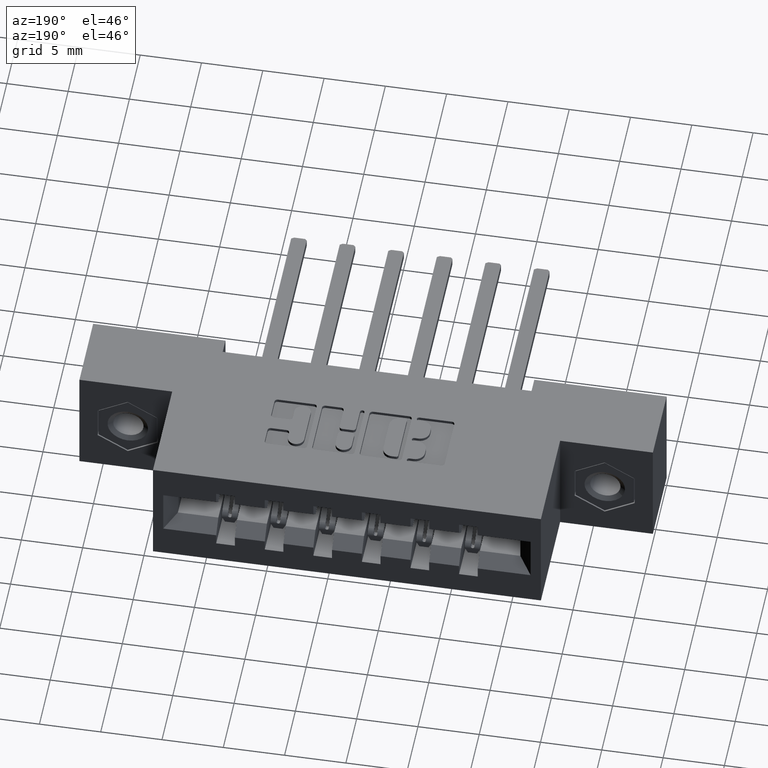
[diagram: clean part render]
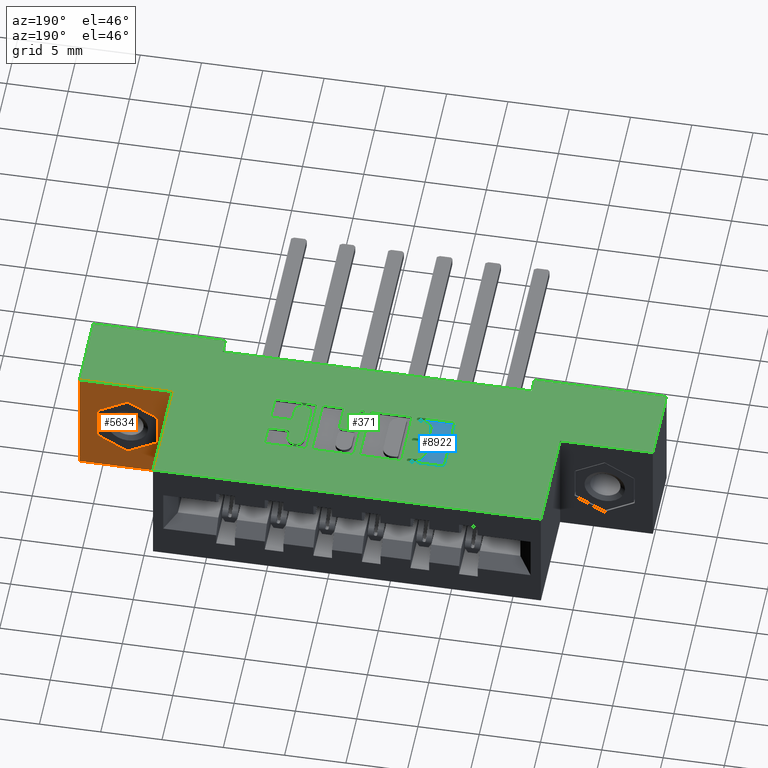
[diagram: same view with three faces highlighted in distinct colors, each labeled with its STEP entity id]
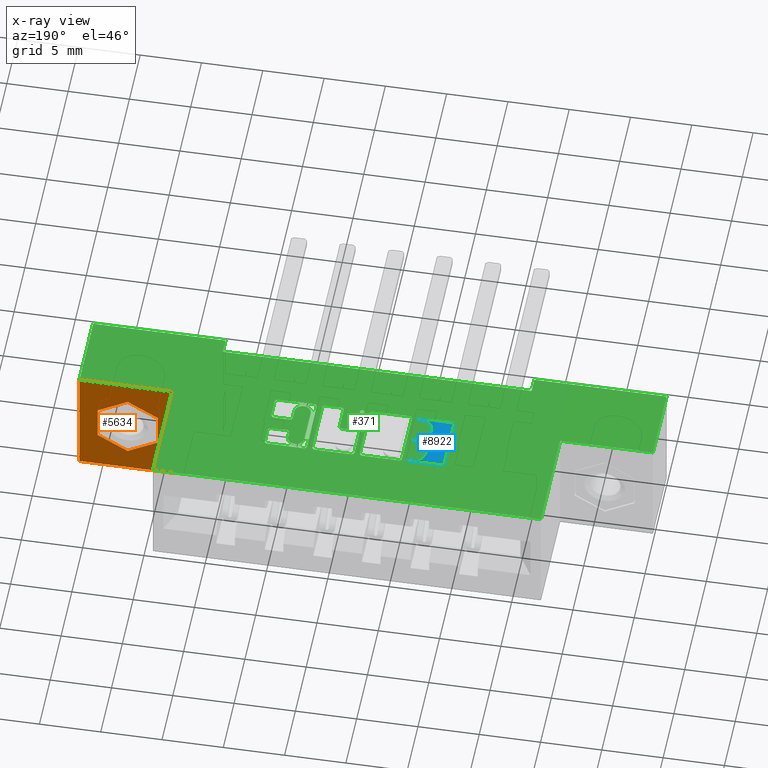
[diagram: x-ray of the same camera — body ghosted, the three highlighted faces saturated]
A machine part, auxiliary view with three faces highlighted in distinct colors.
The next image is the same camera in x-ray (body ghosted, the three faces saturated) — at least one of them is partly hidden behind the body in this view.
Their STEP definitions:

[orange] entity #5634 — the highlighted planar face has unit normal (0, -1, 0).
#99 = CARTESIAN_POINT ( 'NONE',  ( 1.783500000000000300, 0.2500000000000000000, -0.2407143009767989700 ) ) ;
#111 = CARTESIAN_POINT ( 'NONE',  ( 1.842000000000000700, 0.2500000000000001100, -0.3700000000000000000 ) ) ;
#119 = DIRECTION ( 'NONE',  ( 0.8660254037844394800, -0.0000000000000000000, 0.4999999999999983900 ) ) ;
#515 = VERTEX_POINT ( 'NONE', #8058 ) ;
#626 = VECTOR ( 'NONE', #4867, 39.37007874015748900 ) ;
#775 = ORIENTED_EDGE ( 'NONE', *, *, #8384, .F. ) ;
#845 = EDGE_CURVE ( 'NONE', #6485, #918, #8437, .T. ) ;
#894 = DIRECTION ( 'NONE',  ( 1.000000000000000000, -0.0000000000000000000, -0.0000000000000000000 ) ) ;
#918 = VERTEX_POINT ( 'NONE', #99 ) ;
#945 = EDGE_CURVE ( 'NONE', #6625, #5845, #9043, .T. ) ;
#959 = CARTESIAN_POINT ( 'NONE',  ( 1.783500000000000300, 0.2500000000000000000, -0.1292856990232010800 ) ) ;
#1088 = DIRECTION ( 'NONE',  ( 0.0000000000000000000, 0.0000000000000000000, -1.000000000000000000 ) ) ;
#1105 = CARTESIAN_POINT ( 'NONE',  ( 1.544000000000000700, 0.2500000000000000000, 0.0000000000000000000 ) ) ;
#1333 = ORIENTED_EDGE ( 'NONE', *, *, #2485, .F. ) ;
#2253 = ORIENTED_EDGE ( 'NONE', *, *, #945, .T. ) ;
#2326 = CARTESIAN_POINT ( 'NONE',  ( 1.544000000000000700, 0.2500000000000000000, 0.0000000000000000000 ) ) ;
#2369 = VECTOR ( 'NONE', #6370, 39.37007874015748900 ) ;
#2399 = VECTOR ( 'NONE', #7383, 39.37007874015748100 ) ;
#2432 = EDGE_CURVE ( 'NONE', #515, #8293, #7578, .T. ) ;
#2485 = EDGE_CURVE ( 'NONE', #8646, #6485, #9512, .T. ) ;
#2695 = CARTESIAN_POINT ( 'NONE',  ( 1.842000000000000700, 0.2500000000000000000, 0.0000000000000000000 ) ) ;
#2848 = DIRECTION ( 'NONE',  ( -0.8660254037844370400, -0.0000000000000000000, -0.5000000000000026600 ) ) ;
#3271 = CARTESIAN_POINT ( 'NONE',  ( 1.687000000000000900, 0.2500000000000000000, -0.07357139804640221200 ) ) ;
#3318 = LINE ( 'NONE', #5920, #5015 ) ;
#3357 = FACE_OUTER_BOUND ( 'NONE', #7133, .T. ) ;
#3659 = EDGE_CURVE ( 'NONE', #7956, #6625, #3801, .T. ) ;
#3801 = LINE ( 'NONE', #2326, #9993 ) ;
#3868 = LINE ( 'NONE', #6607, #2399 ) ;
#3918 = VECTOR ( 'NONE', #1088, 39.37007874015748100 ) ;
#3937 = VERTEX_POINT ( 'NONE', #9205 ) ;
#4087 = ORIENTED_EDGE ( 'NONE', *, *, #4123, .T. ) ;
#4123 = EDGE_CURVE ( 'NONE', #5845, #4566, #7070, .T. ) ;
#4139 = CARTESIAN_POINT ( 'NONE',  ( 1.590500000000000500, 0.2500000000000000000, -0.2407143009767990200 ) ) ;
#4566 = VERTEX_POINT ( 'NONE', #111 ) ;
#4867 = DIRECTION ( 'NONE',  ( -0.8660254037844399300, -0.0000000000000000000, 0.4999999999999976700 ) ) ;
#4943 = CARTESIAN_POINT ( 'NONE',  ( 1.687000000000000900, 0.2500000000000000000, -0.07357139804640221200 ) ) ;
#5015 = VECTOR ( 'NONE', #2848, 39.37007874015748900 ) ;
#5177 = EDGE_CURVE ( 'NONE', #3937, #8646, #9708, .T. ) ;
#5179 = ORIENTED_EDGE ( 'NONE', *, *, #845, .F. ) ;
#5417 = VECTOR ( 'NONE', #9974, 39.37007874015748100 ) ;
#5426 = FACE_BOUND ( 'NONE', #7874, .T. ) ;
#5577 = CARTESIAN_POINT ( 'NONE',  ( 1.590500000000000500, 0.2500000000000000000, -0.1292856990232011400 ) ) ;
#5634 = ADVANCED_FACE ( 'NONE', ( #5426, #3357 ), #8865, .F. ) ;
#5718 = DIRECTION ( 'NONE',  ( 0.0000000000000000000, 0.0000000000000000000, -1.000000000000000000 ) ) ;
#5845 = VERTEX_POINT ( 'NONE', #5922 ) ;
#5920 = CARTESIAN_POINT ( 'NONE',  ( 1.687000000000000900, 0.2500000000000000000, -0.2964286019535978300 ) ) ;
#5922 = CARTESIAN_POINT ( 'NONE',  ( 1.842000000000000700, 0.2500000000000000000, 0.0000000000000000000 ) ) ;
#6043 = EDGE_CURVE ( 'NONE', #4566, #7956, #3868, .T. ) ;
#6076 = EDGE_CURVE ( 'NONE', #8293, #3937, #9060, .T. ) ;
#6370 = DIRECTION ( 'NONE',  ( 0.8660254037844371500, -0.0000000000000000000, -0.5000000000000023300 ) ) ;
#6406 = CARTESIAN_POINT ( 'NONE',  ( 1.590500000000000500, 0.2500000000000000000, -0.2407143009767990200 ) ) ;
#6485 = VERTEX_POINT ( 'NONE', #8641 ) ;
#6607 = CARTESIAN_POINT ( 'NONE',  ( 1.842000000000000700, 0.2500000000000000000, -0.3700000000000000000 ) ) ;
#6625 = VERTEX_POINT ( 'NONE', #7167 ) ;
#6950 = ORIENTED_EDGE ( 'NONE', *, *, #6043, .T. ) ;
#7070 = LINE ( 'NONE', #2695, #3918 ) ;
#7081 = DIRECTION ( 'NONE',  ( -0.0000000000000000000, -0.0000000000000000000, 1.000000000000000000 ) ) ;
#7115 = CARTESIAN_POINT ( 'NONE',  ( 1.842000000000000700, 0.2500000000000000000, 0.0000000000000000000 ) ) ;
#7133 = EDGE_LOOP ( 'NONE', ( #2253, #4087, #6950, #9776 ) ) ;
#7167 = CARTESIAN_POINT ( 'NONE',  ( 1.544000000000000700, 0.2500000000000000000, 0.0000000000000000000 ) ) ;
#7383 = DIRECTION ( 'NONE',  ( -1.000000000000000000, 0.0000000000000000000, 2.291818786631094000E-016 ) ) ;
#7578 = LINE ( 'NONE', #6406, #626 ) ;
#7874 = EDGE_LOOP ( 'NONE', ( #775, #5179, #1333, #9788, #8754, #9243 ) ) ;
#7885 = DIRECTION ( 'NONE',  ( -0.0000000000000000000, -0.0000000000000000000, 1.000000000000000000 ) ) ;
#7956 = VERTEX_POINT ( 'NONE', #9850 ) ;
#8021 = AXIS2_PLACEMENT_3D ( 'NONE', #1105, #8937, #5718 ) ;
#8058 = CARTESIAN_POINT ( 'NONE',  ( 1.687000000000000900, 0.2500000000000000000, -0.2964286019535978300 ) ) ;
#8293 = VERTEX_POINT ( 'NONE', #4139 ) ;
#8384 = EDGE_CURVE ( 'NONE', #918, #515, #3318, .T. ) ;
#8437 = LINE ( 'NONE', #9272, #5417 ) ;
#8641 = CARTESIAN_POINT ( 'NONE',  ( 1.783500000000000300, 0.2500000000000000000, -0.1292856990232010800 ) ) ;
#8646 = VERTEX_POINT ( 'NONE', #4943 ) ;
#8754 = ORIENTED_EDGE ( 'NONE', *, *, #6076, .F. ) ;
#8865 = PLANE ( 'NONE',  #8021 ) ;
#8937 = DIRECTION ( 'NONE',  ( 0.0000000000000000000, -1.000000000000000000, -0.0000000000000000000 ) ) ;
#9043 = LINE ( 'NONE', #7115, #10041 ) ;
#9060 = LINE ( 'NONE', #5577, #9428 ) ;
#9205 = CARTESIAN_POINT ( 'NONE',  ( 1.590500000000000500, 0.2500000000000000000, -0.1292856990232011400 ) ) ;
#9243 = ORIENTED_EDGE ( 'NONE', *, *, #2432, .F. ) ;
#9272 = CARTESIAN_POINT ( 'NONE',  ( 1.783500000000000300, 0.2500000000000000000, -0.2407143009767989100 ) ) ;
#9344 = VECTOR ( 'NONE', #119, 39.37007874015748100 ) ;
#9428 = VECTOR ( 'NONE', #7885, 39.37007874015748100 ) ;
#9512 = LINE ( 'NONE', #959, #2369 ) ;
#9708 = LINE ( 'NONE', #3271, #9344 ) ;
#9776 = ORIENTED_EDGE ( 'NONE', *, *, #3659, .T. ) ;
#9788 = ORIENTED_EDGE ( 'NONE', *, *, #5177, .F. ) ;
#9850 = CARTESIAN_POINT ( 'NONE',  ( 1.544000000000000700, 0.2500000000000000000, -0.3699999999999999400 ) ) ;
#9974 = DIRECTION ( 'NONE',  ( -0.0000000000000000000, -0.0000000000000000000, -1.000000000000000000 ) ) ;
#9993 = VECTOR ( 'NONE', #7081, 39.37007874015748100 ) ;
#10041 = VECTOR ( 'NONE', #894, 39.37007874015748100 ) ;

[blue] entity #8922 — the highlighted planar face has unit normal (0, 0, 1).
#86 = CARTESIAN_POINT ( 'NONE',  ( 0.7092269153529097100, 0.0000000000000000000, -0.01000000000000000000 ) ) ;
#90 = DIRECTION ( 'NONE',  ( 1.000000000000000000, 0.0000000000000000000, 0.0000000000000000000 ) ) ;
#241 = EDGE_CURVE ( 'NONE', #8539, #9192, #5064, .T. ) ;
#271 = CARTESIAN_POINT ( 'NONE',  ( 0.7541336065353515500, 0.4162857328953856700, -0.01000000000000000000 ) ) ;
#337 = LINE ( 'NONE', #4654, #3178 ) ;
#380 = CARTESIAN_POINT ( 'NONE',  ( 0.7406370600051257500, 0.4094147637527351100, -0.01000000000000000000 ) ) ;
#418 = VERTEX_POINT ( 'NONE', #2517 ) ;
#460 = LINE ( 'NONE', #4177, #3294 ) ;
#505 = AXIS2_PLACEMENT_3D ( 'NONE', #6898, #3030, #2252 ) ;
#543 = ORIENTED_EDGE ( 'NONE', *, *, #4668, .T. ) ;
#600 = LINE ( 'NONE', #9615, #8881 ) ;
#631 = EDGE_CURVE ( 'NONE', #5882, #7333, #882, .T. ) ;
#728 = DIRECTION ( 'NONE',  ( -0.0000000000000000000, 0.0000000000000000000, 1.000000000000000000 ) ) ;
#760 = CIRCLE ( 'NONE', #5968, 0.03141014465215624000 ) ;
#791 = CARTESIAN_POINT ( 'NONE',  ( 0.7541336064153890700, 0.3181290308573562200, -0.01000000000000000000 ) ) ;
#813 = VECTOR ( 'NONE', #963, 39.37007874015748100 ) ;
#844 = ORIENTED_EDGE ( 'NONE', *, *, #9810, .T. ) ;
#882 = CIRCLE ( 'NONE', #6184, 0.006870969142648433200 ) ;
#887 = VERTEX_POINT ( 'NONE', #1488 ) ;
#891 = VECTOR ( 'NONE', #4309, 39.37007874015748100 ) ;
#909 = ORIENTED_EDGE ( 'NONE', *, *, #4211, .T. ) ;
#963 = DIRECTION ( 'NONE',  ( -1.000000000000000000, -1.189163988687022500E-013, 0.0000000000000000000 ) ) ;
#1059 = DIRECTION ( 'NONE',  ( 1.000000000000000000, 0.0000000000000000000, 0.0000000000000000000 ) ) ;
#1078 = EDGE_CURVE ( 'NONE', #418, #4955, #3851, .T. ) ;
#1082 = AXIS2_PLACEMENT_3D ( 'NONE', #271, #5730, #2670 ) ;
#1192 = CIRCLE ( 'NONE', #505, 0.03141014465217454400 ) ;
#1222 = VERTEX_POINT ( 'NONE', #380 ) ;
#1320 = DIRECTION ( 'NONE',  ( 1.000000000000000000, 0.0000000000000000000, 0.0000000000000000000 ) ) ;
#1323 = LINE ( 'NONE', #86, #8752 ) ;
#1476 = EDGE_CURVE ( 'NONE', #5610, #4691, #760, .T. ) ;
#1488 = CARTESIAN_POINT ( 'NONE',  ( 0.6498421106199189200, 0.2268432979619843800, -0.01000000000000000000 ) ) ;
#1841 = CARTESIAN_POINT ( 'NONE',  ( 0.7406370600051098700, 0.2719953808994897700, -0.01000000000000000000 ) ) ;
#1896 = CARTESIAN_POINT ( 'NONE',  ( 0.7092269153529097100, 0.3632811137948577800, -0.01000000000000000000 ) ) ;
#1908 = DIRECTION ( 'NONE',  ( 1.000000000000000000, 0.0000000000000000000, 0.0000000000000000000 ) ) ;
#2180 = DIRECTION ( 'NONE',  ( -0.0000000000000000000, 0.0000000000000000000, 1.000000000000000000 ) ) ;
#2186 = CARTESIAN_POINT ( 'NONE',  ( 0.7541336065353357900, 0.2337142671046473500, -0.01000000000000000000 ) ) ;
#2252 = DIRECTION ( 'NONE',  ( 1.000000000000000000, 0.0000000000000000000, 0.0000000000000000000 ) ) ;
#2298 = CARTESIAN_POINT ( 'NONE',  ( 0.7406370600050843400, 0.2867188862051999700, -0.01000000000000000000 ) ) ;
#2324 = VERTEX_POINT ( 'NONE', #5483 ) ;
#2325 = DIRECTION ( 'NONE',  ( -0.0000000000000000000, 0.0000000000000000000, 1.000000000000000000 ) ) ;
#2354 = EDGE_CURVE ( 'NONE', #5801, #5473, #3710, .T. ) ;
#2375 = CARTESIAN_POINT ( 'NONE',  ( 0.0000000000000000000, 0.4094147637527351100, -0.01000000000000000000 ) ) ;
#2517 = CARTESIAN_POINT ( 'NONE',  ( 0.7092269153529280300, 0.2719953808994897700, -0.01000000000000000000 ) ) ;
#2670 = DIRECTION ( 'NONE',  ( 1.000000000000000000, 0.0000000000000000000, 0.0000000000000000000 ) ) ;
#2711 = ORIENTED_EDGE ( 'NONE', *, *, #2354, .T. ) ;
#2782 = ORIENTED_EDGE ( 'NONE', *, *, #631, .T. ) ;
#2883 = ORIENTED_EDGE ( 'NONE', *, *, #9332, .T. ) ;
#2960 = CIRCLE ( 'NONE', #1082, 0.006870969142648433200 ) ;
#3030 = DIRECTION ( 'NONE',  ( -0.0000000000000000000, 0.0000000000000000000, 1.000000000000000000 ) ) ;
#3046 = EDGE_CURVE ( 'NONE', #1222, #7479, #4064, .T. ) ;
#3070 = VERTEX_POINT ( 'NONE', #4679 ) ;
#3107 = DIRECTION ( 'NONE',  ( 1.000000000000000000, 0.0000000000000000000, 0.0000000000000000000 ) ) ;
#3178 = VECTOR ( 'NONE', #6891, 39.37007874015748100 ) ;
#3284 = EDGE_CURVE ( 'NONE', #7333, #8539, #2960, .T. ) ;
#3294 = VECTOR ( 'NONE', #1908, 39.37007874015748100 ) ;
#3353 = CARTESIAN_POINT ( 'NONE',  ( 0.7610045756779980600, 0.2337142671046473500, -0.01000000000000000000 ) ) ;
#3491 = DIRECTION ( 'NONE',  ( -0.0000000000000000000, 0.0000000000000000000, 1.000000000000000000 ) ) ;
#3562 = CARTESIAN_POINT ( 'NONE',  ( 0.7541336065353102500, 0.3318709691426832700, -0.01000000000000000000 ) ) ;
#3613 = DIRECTION ( 'NONE',  ( -0.0000000000000000000, 0.0000000000000000000, 1.000000000000000000 ) ) ;
#3710 = CIRCLE ( 'NONE', #9493, 0.006870969142662229500 ) ;
#3733 = CARTESIAN_POINT ( 'NONE',  ( 0.7541336065353516600, 0.4094147637527351100, -0.01000000000000000000 ) ) ;
#3808 = CARTESIAN_POINT ( 'NONE',  ( 0.7610045756779999500, 0.4162857328953856700, -0.01000000000000000000 ) ) ;
#3848 = CARTESIAN_POINT ( 'NONE',  ( 0.0000000000000000000, 0.3318709691426832700, -0.01000000000000000000 ) ) ;
#3851 = CIRCLE ( 'NONE', #6310, 0.03141014465218178200 ) ;
#3914 = DIRECTION ( 'NONE',  ( -1.000000000000000000, 0.0000000000000000000, 0.0000000000000000000 ) ) ;
#3939 = CARTESIAN_POINT ( 'NONE',  ( 0.6400264404161156700, 0.2366589681657893500, -0.01000000000000000000 ) ) ;
#4046 = EDGE_CURVE ( 'NONE', #4655, #7479, #1323, .T. ) ;
#4064 = CIRCLE ( 'NONE', #8259, 0.03141014465221592800 ) ;
#4099 = DIRECTION ( 'NONE',  ( -0.0000000000000000000, 0.0000000000000000000, 1.000000000000000000 ) ) ;
#4110 = CARTESIAN_POINT ( 'NONE',  ( -2.860952991549537100E-014, 0.2405852362472199500, -0.01000000000000000000 ) ) ;
#4148 = VECTOR ( 'NONE', #9987, 39.37007874015748100 ) ;
#4177 = CARTESIAN_POINT ( 'NONE',  ( 0.0000000000000000000, 0.3181290308573562200, -0.01000000000000000000 ) ) ;
#4201 = DIRECTION ( 'NONE',  ( 1.000000000000000000, 0.0000000000000000000, 0.0000000000000000000 ) ) ;
#4211 = EDGE_CURVE ( 'NONE', #5473, #3070, #9855, .T. ) ;
#4251 = DIRECTION ( 'NONE',  ( 1.000000000000000000, 0.0000000000000000000, 0.0000000000000000000 ) ) ;
#4309 = DIRECTION ( 'NONE',  ( 1.000000000000000000, 7.203446383881654600E-015, 0.0000000000000000000 ) ) ;
#4369 = AXIS2_PLACEMENT_3D ( 'NONE', #2186, #3613, #4410 ) ;
#4382 = EDGE_CURVE ( 'NONE', #7593, #9040, #4864, .T. ) ;
#4388 = EDGE_CURVE ( 'NONE', #4655, #9040, #1192, .T. ) ;
#4410 = DIRECTION ( 'NONE',  ( 1.000000000000000000, 0.0000000000000000000, 0.0000000000000000000 ) ) ;
#4452 = ORIENTED_EDGE ( 'NONE', *, *, #5362, .T. ) ;
#4594 = LINE ( 'NONE', #2375, #9697 ) ;
#4654 = CARTESIAN_POINT ( 'NONE',  ( 0.7092269153529280300, 0.0000000000000000000, -0.01000000000000000000 ) ) ;
#4655 = VERTEX_POINT ( 'NONE', #1896 ) ;
#4668 = EDGE_CURVE ( 'NONE', #2324, #7593, #6329, .T. ) ;
#4679 = CARTESIAN_POINT ( 'NONE',  ( 0.7541336064154146000, 0.2405852362473096300, -0.01000000000000000000 ) ) ;
#4682 = VECTOR ( 'NONE', #3914, 39.37007874015748100 ) ;
#4691 = VERTEX_POINT ( 'NONE', #9487 ) ;
#4839 = DIRECTION ( 'NONE',  ( -0.0000000000000000000, 0.0000000000000000000, 1.000000000000000000 ) ) ;
#4864 = LINE ( 'NONE', #3848, #4148 ) ;
#4904 = AXIS2_PLACEMENT_3D ( 'NONE', #10030, #5407, #8401 ) ;
#4955 = VERTEX_POINT ( 'NONE', #8289 ) ;
#4980 = DIRECTION ( 'NONE',  ( 1.000000000000000000, 0.0000000000000000000, 0.0000000000000000000 ) ) ;
#4982 = LINE ( 'NONE', #4110, #813 ) ;
#5064 = LINE ( 'NONE', #5431, #4682 ) ;
#5100 = ORIENTED_EDGE ( 'NONE', *, *, #10134, .T. ) ;
#5362 = EDGE_CURVE ( 'NONE', #1222, #5882, #4594, .T. ) ;
#5407 = DIRECTION ( 'NONE',  ( -0.0000000000000000000, 0.0000000000000000000, 1.000000000000000000 ) ) ;
#5424 = CARTESIAN_POINT ( 'NONE',  ( 0.7541336065353357900, 0.2337142671046473500, -0.01000000000000000000 ) ) ;
#5431 = CARTESIAN_POINT ( 'NONE',  ( 0.0000000000000000000, 0.4231567020380321300, -0.01000000000000000000 ) ) ;
#5439 = DIRECTION ( 'NONE',  ( -0.0000000000000000000, 0.0000000000000000000, 1.000000000000000000 ) ) ;
#5473 = VERTEX_POINT ( 'NONE', #3353 ) ;
#5483 = CARTESIAN_POINT ( 'NONE',  ( 0.7610045756779737500, 0.3250000000000197700, -0.01000000000000000000 ) ) ;
#5576 = AXIS2_PLACEMENT_3D ( 'NONE', #9263, #2325, #3107 ) ;
#5610 = VERTEX_POINT ( 'NONE', #6580 ) ;
#5730 = DIRECTION ( 'NONE',  ( -0.0000000000000000000, 0.0000000000000000000, 1.000000000000000000 ) ) ;
#5801 = VERTEX_POINT ( 'NONE', #8189 ) ;
#5882 = VERTEX_POINT ( 'NONE', #3733 ) ;
#5968 = AXIS2_PLACEMENT_3D ( 'NONE', #2298, #5439, #9331 ) ;
#5975 = CARTESIAN_POINT ( 'NONE',  ( 0.7541336065353515500, 0.4231567020380321300, -0.01000000000000000000 ) ) ;
#6156 = CARTESIAN_POINT ( 'NONE',  ( 0.6498421106199383500, 0.4231567020380321300, -0.01000000000000000000 ) ) ;
#6158 = CIRCLE ( 'NONE', #4904, 0.006870969142663458500 ) ;
#6184 = AXIS2_PLACEMENT_3D ( 'NONE', #9762, #9620, #4980 ) ;
#6189 = EDGE_CURVE ( 'NONE', #887, #5801, #8443, .T. ) ;
#6298 = EDGE_CURVE ( 'NONE', #9076, #2324, #6158, .T. ) ;
#6310 = AXIS2_PLACEMENT_3D ( 'NONE', #1841, #4099, #1059 ) ;
#6329 = CIRCLE ( 'NONE', #9507, 0.006870969142663458500 ) ;
#6452 = CARTESIAN_POINT ( 'NONE',  ( 0.7541336065353102500, 0.3250000000000197700, -0.01000000000000000000 ) ) ;
#6490 = DIRECTION ( 'NONE',  ( 0.0000000000000000000, 1.000000000000000000, -0.0000000000000000000 ) ) ;
#6580 = CARTESIAN_POINT ( 'NONE',  ( 0.7406370600050843400, 0.3181290308573562200, -0.01000000000000000000 ) ) ;
#6821 = CARTESIAN_POINT ( 'NONE',  ( 0.6498421106199224800, 0.2366589681657893500, -0.01000000000000000000 ) ) ;
#6876 = PLANE ( 'NONE',  #5576 ) ;
#6891 = DIRECTION ( 'NONE',  ( 0.0000000000000000000, 1.000000000000000000, -0.0000000000000000000 ) ) ;
#6898 = CARTESIAN_POINT ( 'NONE',  ( 0.7406370600050843400, 0.3632811137948577800, -0.01000000000000000000 ) ) ;
#6928 = DIRECTION ( 'NONE',  ( 1.000000000000000000, 0.0000000000000000000, 0.0000000000000000000 ) ) ;
#6987 = DIRECTION ( 'NONE',  ( 1.000000000000000000, 0.0000000000000000000, 0.0000000000000000000 ) ) ;
#6991 = CARTESIAN_POINT ( 'NONE',  ( 0.7092269153529097100, 0.3780046191005191900, -0.01000000000000000000 ) ) ;
#7012 = CARTESIAN_POINT ( 'NONE',  ( 0.7406370600050843400, 0.3318709691426832700, -0.01000000000000000000 ) ) ;
#7035 = ORIENTED_EDGE ( 'NONE', *, *, #1078, .F. ) ;
#7235 = DIRECTION ( 'NONE',  ( -0.0000000000000000000, 0.0000000000000000000, 1.000000000000000000 ) ) ;
#7301 = CARTESIAN_POINT ( 'NONE',  ( -1.634053534412011400E-015, 0.2268432979619796900, -0.01000000000000000000 ) ) ;
#7333 = VERTEX_POINT ( 'NONE', #3808 ) ;
#7443 = CARTESIAN_POINT ( 'NONE',  ( 0.6400264404161156700, 0.4133410318342095000, -0.01000000000000000000 ) ) ;
#7479 = VERTEX_POINT ( 'NONE', #6991 ) ;
#7593 = VERTEX_POINT ( 'NONE', #3562 ) ;
#7603 = EDGE_LOOP ( 'NONE', ( #8775, #4452, #2782, #7799, #9644, #5100, #8961, #2883, #9343, #2711, #909, #8713, #7035, #8031, #9565, #844, #8615, #543, #8807, #9110, #8027 ) ) ;
#7681 = VERTEX_POINT ( 'NONE', #3939 ) ;
#7790 = AXIS2_PLACEMENT_3D ( 'NONE', #9584, #3491, #4251 ) ;
#7799 = ORIENTED_EDGE ( 'NONE', *, *, #3284, .T. ) ;
#7914 = CARTESIAN_POINT ( 'NONE',  ( 0.7406370600051257500, 0.3780046191005191900, -0.01000000000000000000 ) ) ;
#8027 = ORIENTED_EDGE ( 'NONE', *, *, #4046, .T. ) ;
#8031 = ORIENTED_EDGE ( 'NONE', *, *, #9751, .T. ) ;
#8150 = FACE_OUTER_BOUND ( 'NONE', #7603, .T. ) ;
#8169 = AXIS2_PLACEMENT_3D ( 'NONE', #6821, #2180, #1320 ) ;
#8189 = CARTESIAN_POINT ( 'NONE',  ( 0.7541336064154146000, 0.2268432979619851300, -0.01000000000000000000 ) ) ;
#8254 = CIRCLE ( 'NONE', #7790, 0.009815670203822599700 ) ;
#8259 = AXIS2_PLACEMENT_3D ( 'NONE', #7914, #7235, #90 ) ;
#8289 = CARTESIAN_POINT ( 'NONE',  ( 0.7406370600051098700, 0.2405852362473080200, -0.01000000000000000000 ) ) ;
#8401 = DIRECTION ( 'NONE',  ( 1.000000000000000000, 0.0000000000000000000, 0.0000000000000000000 ) ) ;
#8443 = LINE ( 'NONE', #7301, #891 ) ;
#8539 = VERTEX_POINT ( 'NONE', #5975 ) ;
#8615 = ORIENTED_EDGE ( 'NONE', *, *, #6298, .T. ) ;
#8713 = ORIENTED_EDGE ( 'NONE', *, *, #10022, .T. ) ;
#8748 = EDGE_CURVE ( 'NONE', #8834, #7681, #600, .T. ) ;
#8752 = VECTOR ( 'NONE', #6490, 39.37007874015748100 ) ;
#8775 = ORIENTED_EDGE ( 'NONE', *, *, #3046, .F. ) ;
#8804 = DIRECTION ( 'NONE',  ( 0.0000000000000000000, -1.000000000000000000, 0.0000000000000000000 ) ) ;
#8807 = ORIENTED_EDGE ( 'NONE', *, *, #4382, .T. ) ;
#8834 = VERTEX_POINT ( 'NONE', #7443 ) ;
#8881 = VECTOR ( 'NONE', #8804, 39.37007874015748100 ) ;
#8922 = ADVANCED_FACE ( 'NONE', ( #8150 ), #6876, .T. ) ;
#8961 = ORIENTED_EDGE ( 'NONE', *, *, #8748, .T. ) ;
#9040 = VERTEX_POINT ( 'NONE', #7012 ) ;
#9076 = VERTEX_POINT ( 'NONE', #791 ) ;
#9110 = ORIENTED_EDGE ( 'NONE', *, *, #4388, .F. ) ;
#9124 = CIRCLE ( 'NONE', #8169, 0.009815670203805798900 ) ;
#9192 = VERTEX_POINT ( 'NONE', #6156 ) ;
#9263 = CARTESIAN_POINT ( 'NONE',  ( 0.0000000000000000000, 0.0000000000000000000, -0.01000000000000000000 ) ) ;
#9331 = DIRECTION ( 'NONE',  ( 1.000000000000000000, 0.0000000000000000000, 0.0000000000000000000 ) ) ;
#9332 = EDGE_CURVE ( 'NONE', #7681, #887, #9124, .T. ) ;
#9343 = ORIENTED_EDGE ( 'NONE', *, *, #6189, .T. ) ;
#9487 = CARTESIAN_POINT ( 'NONE',  ( 0.7092269153529280300, 0.2867188862051999700, -0.01000000000000000000 ) ) ;
#9493 = AXIS2_PLACEMENT_3D ( 'NONE', #5424, #728, #6987 ) ;
#9507 = AXIS2_PLACEMENT_3D ( 'NONE', #6452, #4839, #4201 ) ;
#9565 = ORIENTED_EDGE ( 'NONE', *, *, #1476, .F. ) ;
#9584 = CARTESIAN_POINT ( 'NONE',  ( 0.6498421106199383500, 0.4133410318342095000, -0.01000000000000000000 ) ) ;
#9615 = CARTESIAN_POINT ( 'NONE',  ( 0.6400264404161156700, 0.0000000000000000000, -0.01000000000000000000 ) ) ;
#9620 = DIRECTION ( 'NONE',  ( -0.0000000000000000000, 0.0000000000000000000, 1.000000000000000000 ) ) ;
#9644 = ORIENTED_EDGE ( 'NONE', *, *, #241, .T. ) ;
#9697 = VECTOR ( 'NONE', #6928, 39.37007874015748100 ) ;
#9751 = EDGE_CURVE ( 'NONE', #418, #4691, #337, .T. ) ;
#9762 = CARTESIAN_POINT ( 'NONE',  ( 0.7541336065353515500, 0.4162857328953856700, -0.01000000000000000000 ) ) ;
#9810 = EDGE_CURVE ( 'NONE', #5610, #9076, #460, .T. ) ;
#9855 = CIRCLE ( 'NONE', #4369, 0.006870969142662229500 ) ;
#9987 = DIRECTION ( 'NONE',  ( -1.000000000000000000, 0.0000000000000000000, 0.0000000000000000000 ) ) ;
#10022 = EDGE_CURVE ( 'NONE', #3070, #4955, #4982, .T. ) ;
#10030 = CARTESIAN_POINT ( 'NONE',  ( 0.7541336065353102500, 0.3250000000000197700, -0.01000000000000000000 ) ) ;
#10134 = EDGE_CURVE ( 'NONE', #9192, #8834, #8254, .T. ) ;

[green] entity #371 — the highlighted planar face has unit normal (0, 0, -1).
#23 = ORIENTED_EDGE ( 'NONE', *, *, #5051, .T. ) ;
#27 = CARTESIAN_POINT ( 'NONE',  ( 1.217678631909940400, 0.2965345564089698100, 0.0000000000000000000 ) ) ;
#28 = ORIENTED_EDGE ( 'NONE', *, *, #7194, .T. ) ;
#38 = EDGE_CURVE ( 'NONE', #344, #8209, #4109, .T. ) ;
#74 = LINE ( 'NONE', #9111, #6454 ) ;
#94 = CARTESIAN_POINT ( 'NONE',  ( -2.860952991549537100E-014, 0.2405852362472199500, 0.0000000000000000000 ) ) ;
#97 = DIRECTION ( 'NONE',  ( -0.0000000000000000000, 0.0000000000000000000, 1.000000000000000000 ) ) ;
#98 = DIRECTION ( 'NONE',  ( 1.000000000000000000, 0.0000000000000000000, 0.0000000000000000000 ) ) ;
#116 = ORIENTED_EDGE ( 'NONE', *, *, #2660, .T. ) ;
#124 = ORIENTED_EDGE ( 'NONE', *, *, #7278, .F. ) ;
#137 = CARTESIAN_POINT ( 'NONE',  ( 0.7092269153529097100, 0.0000000000000000000, 0.0000000000000000000 ) ) ;
#178 = DIRECTION ( 'NONE',  ( 1.000000000000000000, 0.0000000000000000000, 0.0000000000000000000 ) ) ;
#179 = CARTESIAN_POINT ( 'NONE',  ( 1.095964321382818700, 0.2668421540424524300, 0.0000000000000000000 ) ) ;
#181 = EDGE_CURVE ( 'NONE', #667, #9094, #5794, .T. ) ;
#198 = CIRCLE ( 'NONE', #6006, 0.03141014465217454400 ) ;
#200 = DIRECTION ( 'NONE',  ( -1.000000000000000000, 0.0000000000000000000, 0.0000000000000000000 ) ) ;
#207 = VERTEX_POINT ( 'NONE', #3775 ) ;
#218 = CARTESIAN_POINT ( 'NONE',  ( 0.0000000000000000000, 0.4231567020380321300, 0.0000000000000000000 ) ) ;
#232 = CIRCLE ( 'NONE', #1944, 0.009815670203840902800 ) ;
#258 = EDGE_CURVE ( 'NONE', #6647, #7227, #7853, .T. ) ;
#296 = CARTESIAN_POINT ( 'NONE',  ( -0.0000000000000000000, 0.3539562271012330300, 0.0000000000000000000 ) ) ;
#298 = VERTEX_POINT ( 'NONE', #735 ) ;
#306 = EDGE_CURVE ( 'NONE', #4460, #474, #1913, .T. ) ;
#309 = DIRECTION ( 'NONE',  ( 1.000000000000000000, 0.0000000000000000000, 0.0000000000000000000 ) ) ;
#316 = EDGE_LOOP ( 'NONE', ( #5340, #8730, #7018, #2565, #8722, #1527, #3976, #2929, #6932, #9904, #4205, #4103, #7328, #8563, #4254, #3447, #1414, #3341, #5727, #9466 ) ) ;
#319 = ORIENTED_EDGE ( 'NONE', *, *, #9826, .F. ) ;
#322 = CARTESIAN_POINT ( 'NONE',  ( 0.7092269153529280300, 0.2867188862051999700, 0.0000000000000000000 ) ) ;
#323 = AXIS2_PLACEMENT_3D ( 'NONE', #2249, #9186, #5332 ) ;
#344 = VERTEX_POINT ( 'NONE', #4694 ) ;
#371 = ADVANCED_FACE ( 'NONE', ( #8935, #8337, #7368, #8690, #541 ), #3293, .F. ) ;
#383 = LINE ( 'NONE', #3611, #7827 ) ;
#397 = VERTEX_POINT ( 'NONE', #5720 ) ;
#413 = VECTOR ( 'NONE', #5558, 39.37007874015748100 ) ;
#447 = CARTESIAN_POINT ( 'NONE',  ( 0.9295887114283312200, 0.2337142671046473500, 0.0000000000000000000 ) ) ;
#448 = DIRECTION ( 'NONE',  ( -0.0000000000000000000, 0.0000000000000000000, 1.000000000000000000 ) ) ;
#474 = VERTEX_POINT ( 'NONE', #6520 ) ;
#508 = LINE ( 'NONE', #218, #2617 ) ;
#511 = DIRECTION ( 'NONE',  ( 1.000000000000000000, 7.203446383881654600E-015, 0.0000000000000000000 ) ) ;
#531 = ORIENTED_EDGE ( 'NONE', *, *, #3631, .F. ) ;
#541 = FACE_BOUND ( 'NONE', #4008, .T. ) ;
#567 = DIRECTION ( 'NONE',  ( 1.000000000000000000, 0.0000000000000000000, 0.0000000000000000000 ) ) ;
#598 = ORIENTED_EDGE ( 'NONE', *, *, #3240, .T. ) ;
#617 = CARTESIAN_POINT ( 'NONE',  ( 0.7769550397591695700, 0.4133410318342095000, 0.0000000000000000000 ) ) ;
#636 = DIRECTION ( 'NONE',  ( 0.0000000000000000000, -1.000000000000000000, 0.0000000000000000000 ) ) ;
#647 = VECTOR ( 'NONE', #1372, 39.37007874015748100 ) ;
#667 = VERTEX_POINT ( 'NONE', #6752 ) ;
#677 = EDGE_CURVE ( 'NONE', #4794, #9182, #4795, .T. ) ;
#709 = DIRECTION ( 'NONE',  ( 0.0000000000000000000, 1.000000000000000000, -0.0000000000000000000 ) ) ;
#713 = ORIENTED_EDGE ( 'NONE', *, *, #8757, .F. ) ;
#735 = CARTESIAN_POINT ( 'NONE',  ( 1.082222383097458900, 0.4133410318342095000, 0.0000000000000000000 ) ) ;
#737 = VECTOR ( 'NONE', #1987, 39.37007874015748100 ) ;
#745 = CIRCLE ( 'NONE', #1543, 0.02625691779517367100 ) ;
#758 = DIRECTION ( 'NONE',  ( 1.000000000000000000, 0.0000000000000000000, 0.0000000000000000000 ) ) ;
#764 = VECTOR ( 'NONE', #8503, 39.37007874015748100 ) ;
#785 = EDGE_CURVE ( 'NONE', #6061, #2893, #7120, .T. ) ;
#828 = DIRECTION ( 'NONE',  ( 1.000000000000000000, 0.0000000000000000000, 0.0000000000000000000 ) ) ;
#833 = VERTEX_POINT ( 'NONE', #10104 ) ;
#843 = DIRECTION ( 'NONE',  ( -0.0000000000000000000, 0.0000000000000000000, 1.000000000000000000 ) ) ;
#857 = EDGE_CURVE ( 'NONE', #5517, #4720, #4666, .T. ) ;
#870 = VECTOR ( 'NONE', #9802, 39.37007874015748100 ) ;
#881 = EDGE_CURVE ( 'NONE', #8209, #9580, #4091, .T. ) ;
#894 = DIRECTION ( 'NONE',  ( 1.000000000000000000, -0.0000000000000000000, -0.0000000000000000000 ) ) ;
#896 = VERTEX_POINT ( 'NONE', #2468 ) ;
#897 = VERTEX_POINT ( 'NONE', #3799 ) ;
#925 = ORIENTED_EDGE ( 'NONE', *, *, #1659, .T. ) ;
#943 = CARTESIAN_POINT ( 'NONE',  ( 0.0000000000000000000, 0.5999999999999999800, 0.0000000000000000000 ) ) ;
#945 = EDGE_CURVE ( 'NONE', #6625, #5845, #9043, .T. ) ;
#951 = CARTESIAN_POINT ( 'NONE',  ( 1.207862961706167400, 0.3637718973050380600, 0.0000000000000000000 ) ) ;
#972 = VECTOR ( 'NONE', #9439, 39.37007874015748100 ) ;
#983 = VECTOR ( 'NONE', #4476, 39.37007874015748100 ) ;
#1005 = DIRECTION ( 'NONE',  ( -1.000000000000000000, 0.0000000000000000000, -0.0000000000000000000 ) ) ;
#1013 = VERTEX_POINT ( 'NONE', #3974 ) ;
#1033 = CARTESIAN_POINT ( 'NONE',  ( 1.207862961706153400, 0.2965345564089698100, 0.0000000000000000000 ) ) ;
#1079 = CARTESIAN_POINT ( 'NONE',  ( 0.7867707099630104600, 0.4231567020380504500, 0.0000000000000000000 ) ) ;
#1090 = DIRECTION ( 'NONE',  ( 1.000000000000000000, 0.0000000000000000000, 0.0000000000000000000 ) ) ;
#1100 = CARTESIAN_POINT ( 'NONE',  ( 1.417000000000000700, 0.05000000000000000300, 0.0000000000000000000 ) ) ;
#1138 = VECTOR ( 'NONE', #5941, 39.37007874015748100 ) ;
#1139 = DIRECTION ( 'NONE',  ( -0.0000000000000000000, 0.0000000000000000000, 1.000000000000000000 ) ) ;
#1141 = VECTOR ( 'NONE', #7095, 39.37007874015748100 ) ;
#1224 = VERTEX_POINT ( 'NONE', #5943 ) ;
#1230 = ORIENTED_EDGE ( 'NONE', *, *, #677, .F. ) ;
#1231 = DIRECTION ( 'NONE',  ( -0.0000000000000000000, 0.0000000000000000000, 1.000000000000000000 ) ) ;
#1290 = CARTESIAN_POINT ( 'NONE',  ( -0.0000000000000000000, 0.2268432979619826000, 0.0000000000000000000 ) ) ;
#1307 = DIRECTION ( 'NONE',  ( -0.0000000000000000000, 0.0000000000000000000, 1.000000000000000000 ) ) ;
#1325 = ORIENTED_EDGE ( 'NONE', *, *, #7476, .T. ) ;
#1363 = DIRECTION ( 'NONE',  ( 0.0000000000000000000, -1.000000000000000000, 0.0000000000000000000 ) ) ;
#1365 = VERTEX_POINT ( 'NONE', #617 ) ;
#1366 = EDGE_CURVE ( 'NONE', #2535, #6206, #3229, .T. ) ;
#1372 = DIRECTION ( 'NONE',  ( 1.000000000000000000, 0.0000000000000000000, 0.0000000000000000000 ) ) ;
#1382 = ORIENTED_EDGE ( 'NONE', *, *, #3176, .F. ) ;
#1398 = VERTEX_POINT ( 'NONE', #3006 ) ;
#1414 = ORIENTED_EDGE ( 'NONE', *, *, #6369, .F. ) ;
#1418 = CARTESIAN_POINT ( 'NONE',  ( 1.148478156973166100, 0.3637718973050446100, 0.0000000000000000000 ) ) ;
#1477 = AXIS2_PLACEMENT_3D ( 'NONE', #2767, #9674, #5023 ) ;
#1495 = AXIS2_PLACEMENT_3D ( 'NONE', #7337, #7373, #309 ) ;
#1497 = ORIENTED_EDGE ( 'NONE', *, *, #258, .F. ) ;
#1527 = ORIENTED_EDGE ( 'NONE', *, *, #2722, .F. ) ;
#1528 = EDGE_CURVE ( 'NONE', #5755, #7410, #7720, .T. ) ;
#1539 = ORIENTED_EDGE ( 'NONE', *, *, #8360, .F. ) ;
#1542 = CARTESIAN_POINT ( 'NONE',  ( 0.7610045756779980600, 0.2337142671046473500, 0.0000000000000000000 ) ) ;
#1543 = AXIS2_PLACEMENT_3D ( 'NONE', #6455, #8103, #8001 ) ;
#1583 = EDGE_CURVE ( 'NONE', #6024, #4460, #4921, .T. ) ;
#1614 = CARTESIAN_POINT ( 'NONE',  ( 0.2980000000000001000, 0.2500000000000000000, 0.0000000000000000000 ) ) ;
#1659 = EDGE_CURVE ( 'NONE', #3987, #897, #2882, .T. ) ;
#1679 = VECTOR ( 'NONE', #7529, 39.37007874015748100 ) ;
#1685 = CARTESIAN_POINT ( 'NONE',  ( 0.9124112885716693100, 0.0000000000000000000, 0.0000000000000000000 ) ) ;
#1707 = DIRECTION ( 'NONE',  ( -0.0000000000000000000, 0.0000000000000000000, 1.000000000000000000 ) ) ;
#1733 = EDGE_CURVE ( 'NONE', #2893, #4794, #8439, .T. ) ;
#1744 = DIRECTION ( 'NONE',  ( 1.000000000000000000, 0.0000000000000000000, 0.0000000000000000000 ) ) ;
#1761 = DIRECTION ( 'NONE',  ( 1.000000000000000000, 0.0000000000000000000, 0.0000000000000000000 ) ) ;
#1771 = CARTESIAN_POINT ( 'NONE',  ( 0.6498421106199383500, 0.4231567020380321300, 0.0000000000000000000 ) ) ;
#1781 = EDGE_CURVE ( 'NONE', #7631, #2970, #7233, .T. ) ;
#1798 = VERTEX_POINT ( 'NONE', #447 ) ;
#1800 = CARTESIAN_POINT ( 'NONE',  ( 0.0000000000000000000, 0.0000000000000000000, 0.0000000000000000000 ) ) ;
#1801 = CARTESIAN_POINT ( 'NONE',  ( 0.7092269153529097100, 0.3780046191005191900, 0.0000000000000000000 ) ) ;
#1817 = DIRECTION ( 'NONE',  ( 1.000000000000000000, 0.0000000000000000000, 0.0000000000000000000 ) ) ;
#1844 = DIRECTION ( 'NONE',  ( -1.000000000000000000, 0.0000000000000000000, 0.0000000000000000000 ) ) ;
#1870 = DIRECTION ( 'NONE',  ( 0.0000000000000000000, -1.000000000000000000, 0.0000000000000000000 ) ) ;
#1889 = DIRECTION ( 'NONE',  ( -0.0000000000000000000, 0.0000000000000000000, 1.000000000000000000 ) ) ;
#1913 = LINE ( 'NONE', #3990, #413 ) ;
#1915 = VERTEX_POINT ( 'NONE', #4363 ) ;
#1944 = AXIS2_PLACEMENT_3D ( 'NONE', #6408, #1707, #4868 ) ;
#1987 = DIRECTION ( 'NONE',  ( 0.0000000000000000000, 1.000000000000000000, -0.0000000000000000000 ) ) ;
#1994 = CARTESIAN_POINT ( 'NONE',  ( 1.158293827176967400, 0.3063502266127569600, 0.0000000000000000000 ) ) ;
#1998 = EDGE_CURVE ( 'NONE', #3009, #9951, #745, .T. ) ;
#1999 = CIRCLE ( 'NONE', #6225, 0.009815670203806754800 ) ;
#2006 = CARTESIAN_POINT ( 'NONE',  ( 0.7541336065353102500, 0.3318709691426832700, 0.0000000000000000000 ) ) ;
#2027 = VERTEX_POINT ( 'NONE', #1079 ) ;
#2032 = EDGE_CURVE ( 'NONE', #2770, #9648, #3101, .T. ) ;
#2037 = ORIENTED_EDGE ( 'NONE', *, *, #6799, .F. ) ;
#2046 = ORIENTED_EDGE ( 'NONE', *, *, #3132, .F. ) ;
#2059 = DIRECTION ( 'NONE',  ( 1.000000000000000000, 0.0000000000000000000, 0.0000000000000000000 ) ) ;
#2084 = CARTESIAN_POINT ( 'NONE',  ( 1.217678631909940400, 0.0000000000000000000, 0.0000000000000000000 ) ) ;
#2105 = DIRECTION ( 'NONE',  ( 1.000000000000000000, 0.0000000000000000000, 0.0000000000000000000 ) ) ;
#2145 = CARTESIAN_POINT ( 'NONE',  ( 0.7867707099629762700, 0.2268432979619826000, 0.0000000000000000000 ) ) ;
#2154 = EDGE_CURVE ( 'NONE', #5517, #1915, #3084, .T. ) ;
#2163 = EDGE_CURVE ( 'NONE', #6024, #3079, #7698, .T. ) ;
#2169 = EDGE_CURVE ( 'NONE', #5026, #5074, #9765, .T. ) ;
#2176 = VERTEX_POINT ( 'NONE', #4167 ) ;
#2220 = AXIS2_PLACEMENT_3D ( 'NONE', #9914, #4081, #8597 ) ;
#2231 = AXIS2_PLACEMENT_3D ( 'NONE', #2885, #2774, #5104 ) ;
#2248 = EDGE_CURVE ( 'NONE', #1365, #896, #9399, .T. ) ;
#2249 = CARTESIAN_POINT ( 'NONE',  ( 0.7541336065353102500, 0.3250000000000197700, 0.0000000000000000000 ) ) ;
#2251 = CARTESIAN_POINT ( 'NONE',  ( 1.148478156973166100, 0.0000000000000000000, 0.0000000000000000000 ) ) ;
#2256 = CIRCLE ( 'NONE', #5211, 0.03141014465221592800 ) ;
#2266 = ORIENTED_EDGE ( 'NONE', *, *, #9165, .T. ) ;
#2296 = CARTESIAN_POINT ( 'NONE',  ( 1.092038053301299700, 0.4133410318342095000, 0.0000000000000000000 ) ) ;
#2297 = ORIENTED_EDGE ( 'NONE', *, *, #3377, .F. ) ;
#2341 = CIRCLE ( 'NONE', #9971, 0.009815670203806891800 ) ;
#2355 = AXIS2_PLACEMENT_3D ( 'NONE', #3069, #448, #8468 ) ;
#2365 = DIRECTION ( 'NONE',  ( -0.0000000000000000000, 0.0000000000000000000, 1.000000000000000000 ) ) ;
#2397 = CARTESIAN_POINT ( 'NONE',  ( 1.544000000000000700, 0.2500000000000000000, 0.0000000000000000000 ) ) ;
#2434 = DIRECTION ( 'NONE',  ( -0.0000000000000000000, 0.0000000000000000000, 1.000000000000000000 ) ) ;
#2464 = EDGE_CURVE ( 'NONE', #7631, #3729, #2256, .T. ) ;
#2468 = CARTESIAN_POINT ( 'NONE',  ( 0.7769550397591695700, 0.2366589681657893500, 0.0000000000000000000 ) ) ;
#2493 = DIRECTION ( 'NONE',  ( -0.0000000000000000000, 0.0000000000000000000, 1.000000000000000000 ) ) ;
#2535 = VERTEX_POINT ( 'NONE', #7272 ) ;
#2565 = ORIENTED_EDGE ( 'NONE', *, *, #5273, .F. ) ;
#2578 = CIRCLE ( 'NONE', #9046, 0.009815670203806754800 ) ;
#2585 = VECTOR ( 'NONE', #200, 39.37007874015748100 ) ;
#2617 = VECTOR ( 'NONE', #9452, 39.37007874015748100 ) ;
#2660 = EDGE_CURVE ( 'NONE', #833, #4550, #6600, .T. ) ;
#2707 = LINE ( 'NONE', #2834, #3074 ) ;
#2710 = CIRCLE ( 'NONE', #3389, 0.006870969142648433200 ) ;
#2717 = CARTESIAN_POINT ( 'NONE',  ( 0.7541336064154146000, 0.2268432979619851300, 0.0000000000000000000 ) ) ;
#2720 = CIRCLE ( 'NONE', #2355, 0.02625691779518022500 ) ;
#2722 = EDGE_CURVE ( 'NONE', #8688, #9951, #8525, .T. ) ;
#2746 = EDGE_CURVE ( 'NONE', #1798, #6679, #8783, .T. ) ;
#2762 = CIRCLE ( 'NONE', #4132, 0.006870969142662229500 ) ;
#2767 = CARTESIAN_POINT ( 'NONE',  ( 0.7406370600051098700, 0.2719953808994897700, 0.0000000000000000000 ) ) ;
#2768 = VERTEX_POINT ( 'NONE', #7511 ) ;
#2770 = VERTEX_POINT ( 'NONE', #5076 ) ;
#2774 = DIRECTION ( 'NONE',  ( -0.0000000000000000000, 0.0000000000000000000, 1.000000000000000000 ) ) ;
#2776 = EDGE_CURVE ( 'NONE', #3714, #5186, #8402, .T. ) ;
#2789 = CARTESIAN_POINT ( 'NONE',  ( 0.9958444853039849500, 0.3083133606535428700, 0.0000000000000000000 ) ) ;
#2795 = CIRCLE ( 'NONE', #7627, 0.009815670203796920600 ) ;
#2797 = CARTESIAN_POINT ( 'NONE',  ( 0.7406370600051257500, 0.4094147637527351100, 0.0000000000000000000 ) ) ;
#2808 = CARTESIAN_POINT ( 'NONE',  ( 1.095964321382818700, 0.0000000000000000000, 0.0000000000000000000 ) ) ;
#2831 = DIRECTION ( 'NONE',  ( -0.0000000000000000000, 0.0000000000000000000, 1.000000000000000000 ) ) ;
#2834 = CARTESIAN_POINT ( 'NONE',  ( 0.7092269153529280300, 0.0000000000000000000, 0.0000000000000000000 ) ) ;
#2836 = EDGE_LOOP ( 'NONE', ( #8681, #3610, #9889, #2037, #8873, #3607, #4324, #9105, #7294, #598, #531, #6229, #1230, #6424, #5760, #3983, #4748, #9048, #7980, #319, #2963 ) ) ;
#2853 = CARTESIAN_POINT ( 'NONE',  ( 1.005660155507786000, 0.2268432979619840200, 0.0000000000000000000 ) ) ;
#2865 = DIRECTION ( 'NONE',  ( 0.0000000000000000000, 1.000000000000000000, -0.0000000000000000000 ) ) ;
#2882 = CIRCLE ( 'NONE', #4540, 0.009815670203803203800 ) ;
#2885 = CARTESIAN_POINT ( 'NONE',  ( 0.9364596805709872700, 0.2337142671046473500, 0.0000000000000000000 ) ) ;
#2893 = VERTEX_POINT ( 'NONE', #9894 ) ;
#2929 = ORIENTED_EDGE ( 'NONE', *, *, #9136, .F. ) ;
#2963 = ORIENTED_EDGE ( 'NONE', *, *, #1781, .F. ) ;
#2970 = VERTEX_POINT ( 'NONE', #8645 ) ;
#2972 = VERTEX_POINT ( 'NONE', #4613 ) ;
#3006 = CARTESIAN_POINT ( 'NONE',  ( 1.148478156973179200, 0.2668421540424524300, 0.0000000000000000000 ) ) ;
#3009 = VERTEX_POINT ( 'NONE', #8580 ) ;
#3017 = DIRECTION ( 'NONE',  ( -0.0000000000000000000, 0.0000000000000000000, 1.000000000000000000 ) ) ;
#3023 = ORIENTED_EDGE ( 'NONE', *, *, #3923, .F. ) ;
#3026 = VERTEX_POINT ( 'NONE', #27 ) ;
#3069 = CARTESIAN_POINT ( 'NONE',  ( 1.122221239177999100, 0.2668421540424524300, 0.0000000000000000000 ) ) ;
#3074 = VECTOR ( 'NONE', #8277, 39.37007874015748100 ) ;
#3079 = VERTEX_POINT ( 'NONE', #7172 ) ;
#3083 = DIRECTION ( 'NONE',  ( -0.0000000000000000000, 0.0000000000000000000, 1.000000000000000000 ) ) ;
#3084 = LINE ( 'NONE', #9909, #9638 ) ;
#3089 = EDGE_CURVE ( 'NONE', #4550, #4042, #7691, .T. ) ;
#3101 = LINE ( 'NONE', #296, #870 ) ;
#3132 = EDGE_CURVE ( 'NONE', #7227, #9874, #3690, .T. ) ;
#3175 = CARTESIAN_POINT ( 'NONE',  ( 0.7541336065353515500, 0.4162857328953856700, 0.0000000000000000000 ) ) ;
#3176 = EDGE_CURVE ( 'NONE', #5262, #9094, #6726, .T. ) ;
#3179 = CARTESIAN_POINT ( 'NONE',  ( 0.9860288151001880300, 0.3083133606535521900, 0.0000000000000000000 ) ) ;
#3186 = DIRECTION ( 'NONE',  ( -0.0000000000000000000, 0.0000000000000000000, 1.000000000000000000 ) ) ;
#3229 = LINE ( 'NONE', #5209, #647 ) ;
#3240 = EDGE_CURVE ( 'NONE', #397, #5471, #5012, .T. ) ;
#3244 = ORIENTED_EDGE ( 'NONE', *, *, #945, .F. ) ;
#3247 = LINE ( 'NONE', #2084, #1138 ) ;
#3269 = EDGE_CURVE ( 'NONE', #6206, #5812, #4401, .T. ) ;
#3288 = DIRECTION ( 'NONE',  ( -1.000000000000000000, -3.530861605407645300E-014, 0.0000000000000000000 ) ) ;
#3293 = PLANE ( 'NONE',  #4599 ) ;
#3307 = EDGE_CURVE ( 'NONE', #8688, #1398, #2720, .T. ) ;
#3341 = ORIENTED_EDGE ( 'NONE', *, *, #7290, .F. ) ;
#3361 = CARTESIAN_POINT ( 'NONE',  ( 0.9124112885716693100, 0.2366589681657893500, 0.0000000000000000000 ) ) ;
#3377 = EDGE_CURVE ( 'NONE', #7570, #6647, #2341, .T. ) ;
#3389 = AXIS2_PLACEMENT_3D ( 'NONE', #3175, #843, #3929 ) ;
#3397 = CARTESIAN_POINT ( 'NONE',  ( 0.9025956183678282000, 0.4133410318342093900, 0.0000000000000000000 ) ) ;
#3430 = EDGE_LOOP ( 'NONE', ( #2046, #1497, #2297, #124, #3023, #5271, #713, #7484 ) ) ;
#3447 = ORIENTED_EDGE ( 'NONE', *, *, #9891, .F. ) ;
#3512 = VERTEX_POINT ( 'NONE', #8453 ) ;
#3540 = AXIS2_PLACEMENT_3D ( 'NONE', #6776, #1231, #2059 ) ;
#3545 = DIRECTION ( 'NONE',  ( 1.000000000000000000, 0.0000000000000000000, 0.0000000000000000000 ) ) ;
#3553 = CARTESIAN_POINT ( 'NONE',  ( 1.207862961706134500, 0.2268432979619826000, 0.0000000000000000000 ) ) ;
#3563 = VECTOR ( 'NONE', #1363, 39.37007874015748100 ) ;
#3607 = ORIENTED_EDGE ( 'NONE', *, *, #3977, .F. ) ;
#3610 = ORIENTED_EDGE ( 'NONE', *, *, #9480, .F. ) ;
#3611 = CARTESIAN_POINT ( 'NONE',  ( 0.0000000000000000000, 0.3318709691426832700, 0.0000000000000000000 ) ) ;
#3625 = EDGE_CURVE ( 'NONE', #207, #1224, #2710, .T. ) ;
#3631 = EDGE_CURVE ( 'NONE', #8857, #5471, #8389, .T. ) ;
#3676 = CARTESIAN_POINT ( 'NONE',  ( 0.9124112885716693100, 0.4133410318342095000, 0.0000000000000000000 ) ) ;
#3690 = CIRCLE ( 'NONE', #10036, 0.009815670203841039800 ) ;
#3714 = VERTEX_POINT ( 'NONE', #1771 ) ;
#3715 = CIRCLE ( 'NONE', #7642, 0.009815670203787086500 ) ;
#3729 = VERTEX_POINT ( 'NONE', #1801 ) ;
#3741 = DIRECTION ( 'NONE',  ( 1.000000000000000000, 0.0000000000000000000, 0.0000000000000000000 ) ) ;
#3749 = DIRECTION ( 'NONE',  ( 0.0000000000000000000, -1.000000000000000000, 0.0000000000000000000 ) ) ;
#3753 = CARTESIAN_POINT ( 'NONE',  ( 0.9958444853039849500, 0.2366589681657872400, 0.0000000000000000000 ) ) ;
#3766 = CARTESIAN_POINT ( 'NONE',  ( 0.6400264404161156700, 0.2366589681657893500, 0.0000000000000000000 ) ) ;
#3775 = CARTESIAN_POINT ( 'NONE',  ( 0.7610045756779999500, 0.4162857328953856700, 0.0000000000000000000 ) ) ;
#3784 = CARTESIAN_POINT ( 'NONE',  ( 0.9295887114283312200, 0.0000000000000000000, 0.0000000000000000000 ) ) ;
#3799 = CARTESIAN_POINT ( 'NONE',  ( 0.9433306497136472200, 0.3083133606535449800, 0.0000000000000000000 ) ) ;
#3825 = CIRCLE ( 'NONE', #5323, 0.009815670203811535700 ) ;
#3837 = VECTOR ( 'NONE', #5998, 39.37007874015748100 ) ;
#3856 = AXIS2_PLACEMENT_3D ( 'NONE', #4524, #7784, #5579 ) ;
#3858 = VECTOR ( 'NONE', #709, 39.37007874015748100 ) ;
#3909 = CARTESIAN_POINT ( 'NONE',  ( -0.0000000000000000000, 0.4231567020380060400, 0.0000000000000000000 ) ) ;
#3923 = EDGE_CURVE ( 'NONE', #896, #5224, #2578, .T. ) ;
#3925 = AXIS2_PLACEMENT_3D ( 'NONE', #8207, #4184, #9600 ) ;
#3929 = DIRECTION ( 'NONE',  ( 1.000000000000000000, 0.0000000000000000000, 0.0000000000000000000 ) ) ;
#3957 = EDGE_LOOP ( 'NONE', ( #3244, #7749, #7494, #9312, #7084, #9357, #9695, #5603, #5215, #116, #9677, #5770 ) ) ;
#3974 = CARTESIAN_POINT ( 'NONE',  ( 0.7406370600050843400, 0.3318709691426832700, 0.0000000000000000000 ) ) ;
#3976 = ORIENTED_EDGE ( 'NONE', *, *, #3307, .T. ) ;
#3977 = EDGE_CURVE ( 'NONE', #1915, #5857, #4736, .T. ) ;
#3983 = ORIENTED_EDGE ( 'NONE', *, *, #9468, .F. ) ;
#3987 = VERTEX_POINT ( 'NONE', #5843 ) ;
#3990 = CARTESIAN_POINT ( 'NONE',  ( 0.0000000000000000000, 0.0000000000000000000, 0.0000000000000000000 ) ) ;
#4008 = EDGE_LOOP ( 'NONE', ( #1325, #4314, #5462, #1382, #9288, #1539, #28, #23, #7744, #925, #2266, #9414, #7869, #8302 ) ) ;
#4042 = VERTEX_POINT ( 'NONE', #4122 ) ;
#4070 = CARTESIAN_POINT ( 'NONE',  ( 0.7406370600051257500, 0.3780046191005191900, 0.0000000000000000000 ) ) ;
#4081 = DIRECTION ( 'NONE',  ( -0.0000000000000000000, 0.0000000000000000000, 1.000000000000000000 ) ) ;
#4091 = CIRCLE ( 'NONE', #3856, 0.009815670203840084000 ) ;
#4102 = DIRECTION ( 'NONE',  ( 0.0000000000000000000, 1.000000000000000000, -0.0000000000000000000 ) ) ;
#4103 = ORIENTED_EDGE ( 'NONE', *, *, #6204, .F. ) ;
#4109 = LINE ( 'NONE', #4412, #6902 ) ;
#4122 = CARTESIAN_POINT ( 'NONE',  ( 1.842000000000000700, 0.0000000000000000000, 0.0000000000000000000 ) ) ;
#4132 = AXIS2_PLACEMENT_3D ( 'NONE', #4739, #6968, #6323 ) ;
#4149 = VERTEX_POINT ( 'NONE', #5828 ) ;
#4167 = CARTESIAN_POINT ( 'NONE',  ( 0.9860288151001884700, 0.3181290308573491700, 0.0000000000000000000 ) ) ;
#4168 = DIRECTION ( 'NONE',  ( -0.0000000000000000000, 0.0000000000000000000, 1.000000000000000000 ) ) ;
#4184 = DIRECTION ( 'NONE',  ( -0.0000000000000000000, 0.0000000000000000000, 1.000000000000000000 ) ) ;
#4205 = ORIENTED_EDGE ( 'NONE', *, *, #7541, .F. ) ;
#4254 = ORIENTED_EDGE ( 'NONE', *, *, #8166, .F. ) ;
#4261 = VECTOR ( 'NONE', #1870, 39.37007874015748100 ) ;
#4263 = VECTOR ( 'NONE', #7109, 39.37007874015748100 ) ;
#4304 = DIRECTION ( 'NONE',  ( -0.0000000000000000000, 0.0000000000000000000, 1.000000000000000000 ) ) ;
#4313 = VECTOR ( 'NONE', #7463, 39.37007874015748100 ) ;
#4314 = ORIENTED_EDGE ( 'NONE', *, *, #8864, .F. ) ;
#4318 = CARTESIAN_POINT ( 'NONE',  ( 0.7541336064154146000, 0.2405852362473096300, 0.0000000000000000000 ) ) ;
#4324 = ORIENTED_EDGE ( 'NONE', *, *, #2154, .F. ) ;
#4340 = DIRECTION ( 'NONE',  ( 0.0000000000000000000, 1.000000000000000000, -0.0000000000000000000 ) ) ;
#4353 = DIRECTION ( 'NONE',  ( 1.000000000000000000, 0.0000000000000000000, 0.0000000000000000000 ) ) ;
#4358 = LINE ( 'NONE', #2251, #1679 ) ;
#4363 = CARTESIAN_POINT ( 'NONE',  ( 0.7541336064153890700, 0.3181290308573562200, 0.0000000000000000000 ) ) ;
#4373 = CARTESIAN_POINT ( 'NONE',  ( 0.6400264404161156700, 0.4133410318342095000, 0.0000000000000000000 ) ) ;
#4401 = CIRCLE ( 'NONE', #3925, 0.009815670203806345400 ) ;
#4409 = CIRCLE ( 'NONE', #9410, 0.009815670203795690700 ) ;
#4412 = CARTESIAN_POINT ( 'NONE',  ( 1.217678631909972400, 0.0000000000000000000, 0.0000000000000000000 ) ) ;
#4427 = DIRECTION ( 'NONE',  ( -0.0000000000000000000, 0.0000000000000000000, 1.000000000000000000 ) ) ;
#4434 = AXIS2_PLACEMENT_3D ( 'NONE', #8036, #4304, #1090 ) ;
#4441 = DIRECTION ( 'NONE',  ( 1.000000000000000000, 0.0000000000000000000, 0.0000000000000000000 ) ) ;
#4460 = VERTEX_POINT ( 'NONE', #4760 ) ;
#4476 = DIRECTION ( 'NONE',  ( -1.000000000000000000, 0.0000000000000000000, 0.0000000000000000000 ) ) ;
#4524 = CARTESIAN_POINT ( 'NONE',  ( 1.207862961706132300, 0.4133410318342103400, 0.0000000000000000000 ) ) ;
#4534 = VECTOR ( 'NONE', #5695, 39.37007874015748100 ) ;
#4540 = AXIS2_PLACEMENT_3D ( 'NONE', #9561, #2831, #3545 ) ;
#4550 = VERTEX_POINT ( 'NONE', #8630 ) ;
#4561 = CARTESIAN_POINT ( 'NONE',  ( 1.207862961706167400, 0.3539562271012330300, 0.0000000000000000000 ) ) ;
#4562 = LINE ( 'NONE', #1614, #764 ) ;
#4563 = CARTESIAN_POINT ( 'NONE',  ( 0.0000000000000000000, 0.2500000000000000000, 0.0000000000000000000 ) ) ;
#4568 = CARTESIAN_POINT ( 'NONE',  ( 1.055229290037010800, 0.2268432979619840200, 0.0000000000000000000 ) ) ;
#4599 = AXIS2_PLACEMENT_3D ( 'NONE', #9553, #8810, #1005 ) ;
#4613 = CARTESIAN_POINT ( 'NONE',  ( 0.9394043816321276900, 0.4231567020380060400, 0.0000000000000000000 ) ) ;
#4656 = CARTESIAN_POINT ( 'NONE',  ( 1.158293827176977600, 0.3637718973050446100, 0.0000000000000000000 ) ) ;
#4666 = CIRCLE ( 'NONE', #9151, 0.03141014465215624000 ) ;
#4672 = LINE ( 'NONE', #3784, #3858 ) ;
#4694 = CARTESIAN_POINT ( 'NONE',  ( 1.217678631909972400, 0.3637718973050380600, 0.0000000000000000000 ) ) ;
#4700 = CARTESIAN_POINT ( 'NONE',  ( 0.0000000000000000000, 0.4231567020380504500, 0.0000000000000000000 ) ) ;
#4720 = VERTEX_POINT ( 'NONE', #322 ) ;
#4736 = CIRCLE ( 'NONE', #3540, 0.006870969142663458500 ) ;
#4739 = CARTESIAN_POINT ( 'NONE',  ( 0.7541336065353357900, 0.2337142671046473500, 0.0000000000000000000 ) ) ;
#4743 = VERTEX_POINT ( 'NONE', #2853 ) ;
#4744 = LINE ( 'NONE', #9848, #6584 ) ;
#4748 = ORIENTED_EDGE ( 'NONE', *, *, #2776, .F. ) ;
#4758 = CARTESIAN_POINT ( 'NONE',  ( 1.148478156973179200, 0.2965345564089680900, 0.0000000000000000000 ) ) ;
#4760 = CARTESIAN_POINT ( 'NONE',  ( 0.0000000000000000000, 0.0000000000000000000, 0.0000000000000000000 ) ) ;
#4772 = DIRECTION ( 'NONE',  ( -1.000000000000000000, 0.0000000000000000000, 0.0000000000000000000 ) ) ;
#4775 = VECTOR ( 'NONE', #636, 39.37007874015748100 ) ;
#4794 = VERTEX_POINT ( 'NONE', #2717 ) ;
#4795 = CIRCLE ( 'NONE', #5513, 0.006870969142662229500 ) ;
#4797 = CARTESIAN_POINT ( 'NONE',  ( 1.217678631909972400, 0.4133410318341942400, 0.0000000000000000000 ) ) ;
#4815 = DIRECTION ( 'NONE',  ( -0.0000000000000000000, 0.0000000000000000000, 1.000000000000000000 ) ) ;
#4836 = CARTESIAN_POINT ( 'NONE',  ( 0.9025956183678624000, 0.2268432979619826000, 0.0000000000000000000 ) ) ;
#4868 = DIRECTION ( 'NONE',  ( 1.000000000000000000, 0.0000000000000000000, 0.0000000000000000000 ) ) ;
#4921 = LINE ( 'NONE', #943, #6274 ) ;
#4936 = EDGE_CURVE ( 'NONE', #5845, #4042, #5099, .T. ) ;
#5004 = DIRECTION ( 'NONE',  ( 1.000000000000000000, 0.0000000000000000000, 0.0000000000000000000 ) ) ;
#5012 = CIRCLE ( 'NONE', #1477, 0.03141014465218178200 ) ;
#5023 = DIRECTION ( 'NONE',  ( 1.000000000000000000, 0.0000000000000000000, 0.0000000000000000000 ) ) ;
#5026 = VERTEX_POINT ( 'NONE', #5544 ) ;
#5051 = EDGE_CURVE ( 'NONE', #7209, #2176, #2795, .T. ) ;
#5074 = VERTEX_POINT ( 'NONE', #6334 ) ;
#5076 = CARTESIAN_POINT ( 'NONE',  ( 1.158293827176977600, 0.3539562271012330300, 0.0000000000000000000 ) ) ;
#5099 = LINE ( 'NONE', #6751, #7052 ) ;
#5104 = DIRECTION ( 'NONE',  ( 1.000000000000000000, 0.0000000000000000000, 0.0000000000000000000 ) ) ;
#5127 = LINE ( 'NONE', #7847, #2585 ) ;
#5154 = DIRECTION ( 'NONE',  ( -1.000000000000000000, 0.0000000000000000000, 0.0000000000000000000 ) ) ;
#5186 = VERTEX_POINT ( 'NONE', #4373 ) ;
#5209 = CARTESIAN_POINT ( 'NONE',  ( -0.0000000000000000000, 0.2268432979619826000, 0.0000000000000000000 ) ) ;
#5211 = AXIS2_PLACEMENT_3D ( 'NONE', #4070, #2434, #178 ) ;
#5215 = ORIENTED_EDGE ( 'NONE', *, *, #8138, .F. ) ;
#5216 = DIRECTION ( 'NONE',  ( 1.000000000000000000, 0.0000000000000000000, 0.0000000000000000000 ) ) ;
#5224 = VERTEX_POINT ( 'NONE', #2145 ) ;
#5262 = VERTEX_POINT ( 'NONE', #4568 ) ;
#5271 = ORIENTED_EDGE ( 'NONE', *, *, #2248, .F. ) ;
#5273 = EDGE_CURVE ( 'NONE', #3009, #8944, #4358, .T. ) ;
#5323 = AXIS2_PLACEMENT_3D ( 'NONE', #4656, #1889, #1744 ) ;
#5332 = DIRECTION ( 'NONE',  ( 1.000000000000000000, 0.0000000000000000000, 0.0000000000000000000 ) ) ;
#5340 = ORIENTED_EDGE ( 'NONE', *, *, #6067, .F. ) ;
#5396 = CIRCLE ( 'NONE', #9140, 0.009815670203803340800 ) ;
#5399 = VECTOR ( 'NONE', #6573, 39.37007874015748100 ) ;
#5462 = ORIENTED_EDGE ( 'NONE', *, *, #181, .T. ) ;
#5471 = VERTEX_POINT ( 'NONE', #9550 ) ;
#5480 = DIRECTION ( 'NONE',  ( 1.000000000000000000, 0.0000000000000000000, 0.0000000000000000000 ) ) ;
#5513 = AXIS2_PLACEMENT_3D ( 'NONE', #9866, #6817, #567 ) ;
#5516 = VECTOR ( 'NONE', #4441, 39.37007874015748100 ) ;
#5517 = VERTEX_POINT ( 'NONE', #9486 ) ;
#5518 = CARTESIAN_POINT ( 'NONE',  ( -1.123269580619635500E-014, 0.3181290308573143700, 0.0000000000000000000 ) ) ;
#5544 = CARTESIAN_POINT ( 'NONE',  ( 0.2980000000000001000, 0.5999999999999999800, 0.0000000000000000000 ) ) ;
#5558 = DIRECTION ( 'NONE',  ( 1.000000000000000000, 0.0000000000000000000, 0.0000000000000000000 ) ) ;
#5569 = DIRECTION ( 'NONE',  ( -0.0000000000000000000, 1.000000000000000000, -0.0000000000000000000 ) ) ;
#5579 = DIRECTION ( 'NONE',  ( 1.000000000000000000, 0.0000000000000000000, 0.0000000000000000000 ) ) ;
#5603 = ORIENTED_EDGE ( 'NONE', *, *, #7154, .F. ) ;
#5666 = CIRCLE ( 'NONE', #5674, 0.009815670203804980100 ) ;
#5672 = CARTESIAN_POINT ( 'NONE',  ( 1.065044960240807000, 0.2366589681657802800, 0.0000000000000000000 ) ) ;
#5674 = AXIS2_PLACEMENT_3D ( 'NONE', #951, #9444, #98 ) ;
#5695 = DIRECTION ( 'NONE',  ( -1.000000000000000000, -0.0000000000000000000, -0.0000000000000000000 ) ) ;
#5701 = DIRECTION ( 'NONE',  ( 1.000000000000000000, 0.0000000000000000000, 0.0000000000000000000 ) ) ;
#5720 = CARTESIAN_POINT ( 'NONE',  ( 0.7092269153529280300, 0.2719953808994897700, 0.0000000000000000000 ) ) ;
#5727 = ORIENTED_EDGE ( 'NONE', *, *, #881, .F. ) ;
#5755 = VERTEX_POINT ( 'NONE', #1994 ) ;
#5760 = ORIENTED_EDGE ( 'NONE', *, *, #785, .F. ) ;
#5761 = CARTESIAN_POINT ( 'NONE',  ( 0.4249999999999999300, 0.05000000000000000300, 0.0000000000000000000 ) ) ;
#5770 = ORIENTED_EDGE ( 'NONE', *, *, #4936, .F. ) ;
#5794 = LINE ( 'NONE', #9153, #8215 ) ;
#5799 = EDGE_CURVE ( 'NONE', #7692, #1013, #198, .T. ) ;
#5812 = VERTEX_POINT ( 'NONE', #9034 ) ;
#5828 = CARTESIAN_POINT ( 'NONE',  ( 1.055229290037014200, 0.4231567020380060400, 0.0000000000000000000 ) ) ;
#5843 = CARTESIAN_POINT ( 'NONE',  ( 0.9531463199174504700, 0.3181290308573480100, 0.0000000000000000000 ) ) ;
#5845 = VERTEX_POINT ( 'NONE', #5922 ) ;
#5846 = CARTESIAN_POINT ( 'NONE',  ( 0.6498421106199383500, 0.4133410318342095000, 0.0000000000000000000 ) ) ;
#5857 = VERTEX_POINT ( 'NONE', #5986 ) ;
#5877 = LINE ( 'NONE', #1290, #3837 ) ;
#5922 = CARTESIAN_POINT ( 'NONE',  ( 1.842000000000000700, 0.2500000000000000000, 0.0000000000000000000 ) ) ;
#5941 = DIRECTION ( 'NONE',  ( 0.0000000000000000000, 1.000000000000000000, -0.0000000000000000000 ) ) ;
#5943 = CARTESIAN_POINT ( 'NONE',  ( 0.7541336065353515500, 0.4231567020380321300, 0.0000000000000000000 ) ) ;
#5986 = CARTESIAN_POINT ( 'NONE',  ( 0.7610045756779737500, 0.3250000000000197700, 0.0000000000000000000 ) ) ;
#5998 = DIRECTION ( 'NONE',  ( 1.000000000000000000, 0.0000000000000000000, 0.0000000000000000000 ) ) ;
#6006 = AXIS2_PLACEMENT_3D ( 'NONE', #7448, #7548, #8969 ) ;
#6024 = VERTEX_POINT ( 'NONE', #8899 ) ;
#6046 = AXIS2_PLACEMENT_3D ( 'NONE', #10010, #3083, #8457 ) ;
#6061 = VERTEX_POINT ( 'NONE', #3766 ) ;
#6067 = EDGE_CURVE ( 'NONE', #9648, #344, #5666, .T. ) ;
#6136 = EDGE_CURVE ( 'NONE', #2972, #2768, #6169, .T. ) ;
#6169 = CIRCLE ( 'NONE', #1495, 0.009815670203796511200 ) ;
#6204 = EDGE_CURVE ( 'NONE', #5812, #3026, #3247, .T. ) ;
#6206 = VERTEX_POINT ( 'NONE', #3553 ) ;
#6225 = AXIS2_PLACEMENT_3D ( 'NONE', #7822, #3186, #828 ) ;
#6229 = ORIENTED_EDGE ( 'NONE', *, *, #6429, .F. ) ;
#6255 = LINE ( 'NONE', #9737, #7702 ) ;
#6274 = VECTOR ( 'NONE', #6426, 39.37007874015748100 ) ;
#6282 = DIRECTION ( 'NONE',  ( 1.000000000000000000, 0.0000000000000000000, 0.0000000000000000000 ) ) ;
#6320 = EDGE_CURVE ( 'NONE', #1798, #2768, #4672, .T. ) ;
#6323 = DIRECTION ( 'NONE',  ( 1.000000000000000000, 0.0000000000000000000, 0.0000000000000000000 ) ) ;
#6334 = CARTESIAN_POINT ( 'NONE',  ( 1.544000000000000700, 0.5999999999999999800, 0.0000000000000000000 ) ) ;
#6354 = CARTESIAN_POINT ( 'NONE',  ( 0.4249999999999999300, 0.05000000000000000300, 0.0000000000000000000 ) ) ;
#6369 = EDGE_CURVE ( 'NONE', #7365, #298, #7005, .T. ) ;
#6408 = CARTESIAN_POINT ( 'NONE',  ( 0.7867707099630104600, 0.4133410318342095000, 0.0000000000000000000 ) ) ;
#6419 = EDGE_CURVE ( 'NONE', #3079, #5026, #4562, .T. ) ;
#6424 = ORIENTED_EDGE ( 'NONE', *, *, #1733, .F. ) ;
#6426 = DIRECTION ( 'NONE',  ( -0.0000000000000000000, -1.000000000000000000, -0.0000000000000000000 ) ) ;
#6429 = EDGE_CURVE ( 'NONE', #9182, #8857, #2762, .T. ) ;
#6454 = VECTOR ( 'NONE', #10105, 39.37007874015748100 ) ;
#6455 = CARTESIAN_POINT ( 'NONE',  ( 1.122221239177992400, 0.3831578459575290000, 0.0000000000000000000 ) ) ;
#6479 = LINE ( 'NONE', #2397, #8037 ) ;
#6502 = CARTESIAN_POINT ( 'NONE',  ( 0.0000000000000000000, 0.3063502266127569600, 0.0000000000000000000 ) ) ;
#6504 = EDGE_CURVE ( 'NONE', #9874, #2027, #9283, .T. ) ;
#6506 = AXIS2_PLACEMENT_3D ( 'NONE', #9464, #4815, #1761 ) ;
#6520 = CARTESIAN_POINT ( 'NONE',  ( 0.4249999999999999300, 0.0000000000000000000, 0.0000000000000000000 ) ) ;
#6573 = DIRECTION ( 'NONE',  ( -0.0000000000000000000, -1.000000000000000000, -0.0000000000000000000 ) ) ;
#6584 = VECTOR ( 'NONE', #3749, 39.37007874015748100 ) ;
#6600 = LINE ( 'NONE', #1100, #5399 ) ;
#6601 = CARTESIAN_POINT ( 'NONE',  ( 1.055229290037011900, 0.4133410318342097800, 0.0000000000000000000 ) ) ;
#6603 = DIRECTION ( 'NONE',  ( 1.000000000000000000, 0.0000000000000000000, 0.0000000000000000000 ) ) ;
#6614 = CARTESIAN_POINT ( 'NONE',  ( 0.6400264404161156700, 0.0000000000000000000, 0.0000000000000000000 ) ) ;
#6625 = VERTEX_POINT ( 'NONE', #7167 ) ;
#6636 = VECTOR ( 'NONE', #511, 39.37007874015748100 ) ;
#6647 = VERTEX_POINT ( 'NONE', #3361 ) ;
#6679 = VERTEX_POINT ( 'NONE', #8983 ) ;
#6726 = CIRCLE ( 'NONE', #4434, 0.009815670203796237100 ) ;
#6751 = CARTESIAN_POINT ( 'NONE',  ( 1.842000000000000700, 0.5999999999999999800, 0.0000000000000000000 ) ) ;
#6752 = CARTESIAN_POINT ( 'NONE',  ( 1.065044960240807000, 0.4133410318342003500, 0.0000000000000000000 ) ) ;
#6776 = CARTESIAN_POINT ( 'NONE',  ( 0.7541336065353102500, 0.3250000000000197700, 0.0000000000000000000 ) ) ;
#6792 = DIRECTION ( 'NONE',  ( -0.0000000000000000000, -1.000000000000000000, -0.0000000000000000000 ) ) ;
#6799 = EDGE_CURVE ( 'NONE', #7276, #1013, #383, .T. ) ;
#6817 = DIRECTION ( 'NONE',  ( -0.0000000000000000000, 0.0000000000000000000, 1.000000000000000000 ) ) ;
#6827 = DIRECTION ( 'NONE',  ( 0.0000000000000000000, -1.000000000000000000, 0.0000000000000000000 ) ) ;
#6858 = LINE ( 'NONE', #5518, #10019 ) ;
#6866 = VECTOR ( 'NONE', #6282, 39.37007874015748100 ) ;
#6902 = VECTOR ( 'NONE', #4340, 39.37007874015748100 ) ;
#6932 = ORIENTED_EDGE ( 'NONE', *, *, #1528, .F. ) ;
#6948 = DIRECTION ( 'NONE',  ( 1.000000000000000000, 0.0000000000000000000, 0.0000000000000000000 ) ) ;
#6968 = DIRECTION ( 'NONE',  ( -0.0000000000000000000, 0.0000000000000000000, 1.000000000000000000 ) ) ;
#7005 = CIRCLE ( 'NONE', #9843, 0.009815670203840767500 ) ;
#7018 = ORIENTED_EDGE ( 'NONE', *, *, #8242, .F. ) ;
#7052 = VECTOR ( 'NONE', #9177, 39.37007874015748100 ) ;
#7080 = VERTEX_POINT ( 'NONE', #9703 ) ;
#7084 = ORIENTED_EDGE ( 'NONE', *, *, #2163, .F. ) ;
#7095 = DIRECTION ( 'NONE',  ( 0.0000000000000000000, 1.000000000000000000, -0.0000000000000000000 ) ) ;
#7109 = DIRECTION ( 'NONE',  ( -1.000000000000000000, -1.189163988687022500E-013, 0.0000000000000000000 ) ) ;
#7115 = CARTESIAN_POINT ( 'NONE',  ( 1.842000000000000700, 0.2500000000000000000, 0.0000000000000000000 ) ) ;
#7120 = CIRCLE ( 'NONE', #6046, 0.009815670203805798900 ) ;
#7154 = EDGE_CURVE ( 'NONE', #3512, #474, #10028, .T. ) ;
#7167 = CARTESIAN_POINT ( 'NONE',  ( 1.544000000000000700, 0.2500000000000000000, 0.0000000000000000000 ) ) ;
#7172 = CARTESIAN_POINT ( 'NONE',  ( 0.2980000000000001000, 0.2500000000000000000, 0.0000000000000000000 ) ) ;
#7194 = EDGE_CURVE ( 'NONE', #8450, #7209, #6255, .T. ) ;
#7209 = VERTEX_POINT ( 'NONE', #2789 ) ;
#7227 = VERTEX_POINT ( 'NONE', #3676 ) ;
#7233 = LINE ( 'NONE', #7397, #4313 ) ;
#7272 = CARTESIAN_POINT ( 'NONE',  ( 1.092038053301265700, 0.2268432979619826000, 0.0000000000000000000 ) ) ;
#7276 = VERTEX_POINT ( 'NONE', #2006 ) ;
#7278 = EDGE_CURVE ( 'NONE', #5224, #7570, #5877, .T. ) ;
#7290 = EDGE_CURVE ( 'NONE', #9580, #7365, #7467, .T. ) ;
#7294 = ORIENTED_EDGE ( 'NONE', *, *, #9125, .F. ) ;
#7328 = ORIENTED_EDGE ( 'NONE', *, *, #3269, .F. ) ;
#7337 = CARTESIAN_POINT ( 'NONE',  ( 0.9394043816321276900, 0.4133410318342095000, 0.0000000000000000000 ) ) ;
#7365 = VERTEX_POINT ( 'NONE', #7729 ) ;
#7368 = FACE_OUTER_BOUND ( 'NONE', #3957, .T. ) ;
#7373 = DIRECTION ( 'NONE',  ( -0.0000000000000000000, 0.0000000000000000000, 1.000000000000000000 ) ) ;
#7386 = EDGE_CURVE ( 'NONE', #5857, #7276, #8912, .T. ) ;
#7397 = CARTESIAN_POINT ( 'NONE',  ( -0.0000000000000000000, 0.4094147637527351100, 0.0000000000000000000 ) ) ;
#7410 = VERTEX_POINT ( 'NONE', #4758 ) ;
#7445 = CARTESIAN_POINT ( 'NONE',  ( 1.005660155507788200, 0.2366589681657872400, 0.0000000000000000000 ) ) ;
#7448 = CARTESIAN_POINT ( 'NONE',  ( 0.7406370600050843400, 0.3632811137948577800, 0.0000000000000000000 ) ) ;
#7463 = DIRECTION ( 'NONE',  ( 1.000000000000000000, 0.0000000000000000000, 0.0000000000000000000 ) ) ;
#7467 = LINE ( 'NONE', #10018, #983 ) ;
#7476 = EDGE_CURVE ( 'NONE', #2972, #4149, #8181, .T. ) ;
#7484 = ORIENTED_EDGE ( 'NONE', *, *, #6504, .F. ) ;
#7494 = ORIENTED_EDGE ( 'NONE', *, *, #2169, .F. ) ;
#7511 = CARTESIAN_POINT ( 'NONE',  ( 0.9295887114283312200, 0.4133410318342095000, 0.0000000000000000000 ) ) ;
#7529 = DIRECTION ( 'NONE',  ( 0.0000000000000000000, -1.000000000000000000, 0.0000000000000000000 ) ) ;
#7540 = LINE ( 'NONE', #137, #8267 ) ;
#7541 = EDGE_CURVE ( 'NONE', #3026, #8083, #3715, .T. ) ;
#7548 = DIRECTION ( 'NONE',  ( -0.0000000000000000000, 0.0000000000000000000, 1.000000000000000000 ) ) ;
#7570 = VERTEX_POINT ( 'NONE', #4836 ) ;
#7627 = AXIS2_PLACEMENT_3D ( 'NONE', #3179, #97, #5480 ) ;
#7631 = VERTEX_POINT ( 'NONE', #2797 ) ;
#7642 = AXIS2_PLACEMENT_3D ( 'NONE', #1033, #4168, #1817 ) ;
#7691 = LINE ( 'NONE', #1800, #972 ) ;
#7692 = VERTEX_POINT ( 'NONE', #9353 ) ;
#7698 = LINE ( 'NONE', #4563, #5516 ) ;
#7702 = VECTOR ( 'NONE', #2865, 39.37007874015748100 ) ;
#7704 = DIRECTION ( 'NONE',  ( -0.0000000000000000000, 0.0000000000000000000, 1.000000000000000000 ) ) ;
#7709 = VECTOR ( 'NONE', #4772, 39.37007874015748100 ) ;
#7720 = CIRCLE ( 'NONE', #6506, 0.009815670203788042300 ) ;
#7729 = CARTESIAN_POINT ( 'NONE',  ( 1.092038053301299700, 0.4231567020380504500, 0.0000000000000000000 ) ) ;
#7744 = ORIENTED_EDGE ( 'NONE', *, *, #8243, .T. ) ;
#7749 = ORIENTED_EDGE ( 'NONE', *, *, #8927, .T. ) ;
#7782 = VECTOR ( 'NONE', #1844, 39.37007874015748100 ) ;
#7784 = DIRECTION ( 'NONE',  ( -0.0000000000000000000, 0.0000000000000000000, 1.000000000000000000 ) ) ;
#7820 = VECTOR ( 'NONE', #3741, 39.37007874015748100 ) ;
#7822 = CARTESIAN_POINT ( 'NONE',  ( 1.092038053301265700, 0.2366589681657893500, 0.0000000000000000000 ) ) ;
#7827 = VECTOR ( 'NONE', #5154, 39.37007874015748100 ) ;
#7847 = CARTESIAN_POINT ( 'NONE',  ( 0.0000000000000000000, 0.2268432979619840200, 0.0000000000000000000 ) ) ;
#7853 = LINE ( 'NONE', #1685, #1141 ) ;
#7869 = ORIENTED_EDGE ( 'NONE', *, *, #6320, .T. ) ;
#7887 = EDGE_CURVE ( 'NONE', #1224, #3714, #508, .T. ) ;
#7980 = ORIENTED_EDGE ( 'NONE', *, *, #3625, .F. ) ;
#8001 = DIRECTION ( 'NONE',  ( 1.000000000000000000, 0.0000000000000000000, 0.0000000000000000000 ) ) ;
#8036 = CARTESIAN_POINT ( 'NONE',  ( 1.055229290037010800, 0.2366589681657802800, 0.0000000000000000000 ) ) ;
#8037 = VECTOR ( 'NONE', #5569, 39.37007874015748100 ) ;
#8083 = VERTEX_POINT ( 'NONE', #8531 ) ;
#8091 = DIRECTION ( 'NONE',  ( -0.0000000000000000000, 0.0000000000000000000, 1.000000000000000000 ) ) ;
#8103 = DIRECTION ( 'NONE',  ( -0.0000000000000000000, 0.0000000000000000000, 1.000000000000000000 ) ) ;
#8138 = EDGE_CURVE ( 'NONE', #833, #3512, #9262, .T. ) ;
#8143 = LINE ( 'NONE', #6502, #7782 ) ;
#8166 = EDGE_CURVE ( 'NONE', #7080, #2535, #1999, .T. ) ;
#8181 = LINE ( 'NONE', #3909, #6866 ) ;
#8203 = CARTESIAN_POINT ( 'NONE',  ( 0.9025956183678963700, 0.4231567020380504500, 0.0000000000000000000 ) ) ;
#8207 = CARTESIAN_POINT ( 'NONE',  ( 1.207862961706134500, 0.2366589681657893500, 0.0000000000000000000 ) ) ;
#8209 = VERTEX_POINT ( 'NONE', #4797 ) ;
#8215 = VECTOR ( 'NONE', #6827, 39.37007874015748100 ) ;
#8216 = VECTOR ( 'NONE', #6792, 39.37007874015748100 ) ;
#8242 = EDGE_CURVE ( 'NONE', #8944, #2770, #3825, .T. ) ;
#8243 = EDGE_CURVE ( 'NONE', #2176, #3987, #6858, .T. ) ;
#8267 = VECTOR ( 'NONE', #4102, 39.37007874015748100 ) ;
#8277 = DIRECTION ( 'NONE',  ( 0.0000000000000000000, 1.000000000000000000, -0.0000000000000000000 ) ) ;
#8294 = CARTESIAN_POINT ( 'NONE',  ( 0.0000000000000000000, 0.5999999999999999800, 0.0000000000000000000 ) ) ;
#8302 = ORIENTED_EDGE ( 'NONE', *, *, #6136, .F. ) ;
#8318 = AXIS2_PLACEMENT_3D ( 'NONE', #5846, #1307, #4353 ) ;
#8337 = FACE_BOUND ( 'NONE', #2836, .T. ) ;
#8360 = EDGE_CURVE ( 'NONE', #8450, #4743, #5396, .T. ) ;
#8389 = LINE ( 'NONE', #94, #4263 ) ;
#8402 = CIRCLE ( 'NONE', #8318, 0.009815670203822599700 ) ;
#8439 = LINE ( 'NONE', #9741, #6636 ) ;
#8450 = VERTEX_POINT ( 'NONE', #3753 ) ;
#8453 = CARTESIAN_POINT ( 'NONE',  ( 0.4249999999999999300, 0.05000000000000000300, 0.0000000000000000000 ) ) ;
#8457 = DIRECTION ( 'NONE',  ( 1.000000000000000000, 0.0000000000000000000, 0.0000000000000000000 ) ) ;
#8468 = DIRECTION ( 'NONE',  ( 1.000000000000000000, 0.0000000000000000000, 0.0000000000000000000 ) ) ;
#8471 = DIRECTION ( 'NONE',  ( 1.000000000000000000, 0.0000000000000000000, 0.0000000000000000000 ) ) ;
#8503 = DIRECTION ( 'NONE',  ( -0.0000000000000000000, 1.000000000000000000, -0.0000000000000000000 ) ) ;
#8512 = CARTESIAN_POINT ( 'NONE',  ( 0.7867707099629762700, 0.2366589681657893500, 0.0000000000000000000 ) ) ;
#8525 = LINE ( 'NONE', #2808, #737 ) ;
#8531 = CARTESIAN_POINT ( 'NONE',  ( 1.207862961706156900, 0.3063502266127569600, 0.0000000000000000000 ) ) ;
#8563 = ORIENTED_EDGE ( 'NONE', *, *, #1366, .F. ) ;
#8580 = CARTESIAN_POINT ( 'NONE',  ( 1.148478156973166100, 0.3831578454992593000, 0.0000000000000000000 ) ) ;
#8597 = DIRECTION ( 'NONE',  ( 1.000000000000000000, 0.0000000000000000000, 0.0000000000000000000 ) ) ;
#8616 = CIRCLE ( 'NONE', #2220, 0.006870969142648433200 ) ;
#8630 = CARTESIAN_POINT ( 'NONE',  ( 1.417000000000000700, 0.0000000000000000000, 0.0000000000000000000 ) ) ;
#8645 = CARTESIAN_POINT ( 'NONE',  ( 0.7541336065353516600, 0.4094147637527351100, 0.0000000000000000000 ) ) ;
#8681 = ORIENTED_EDGE ( 'NONE', *, *, #2464, .T. ) ;
#8688 = VERTEX_POINT ( 'NONE', #179 ) ;
#8690 = FACE_BOUND ( 'NONE', #3430, .T. ) ;
#8722 = ORIENTED_EDGE ( 'NONE', *, *, #1998, .T. ) ;
#8730 = ORIENTED_EDGE ( 'NONE', *, *, #2032, .F. ) ;
#8756 = CARTESIAN_POINT ( 'NONE',  ( 1.207862961706168700, 0.4231567020380504500, 0.0000000000000000000 ) ) ;
#8757 = EDGE_CURVE ( 'NONE', #2027, #1365, #232, .T. ) ;
#8769 = CARTESIAN_POINT ( 'NONE',  ( 1.095964321382818700, 0.3831578459575290000, 0.0000000000000000000 ) ) ;
#8783 = CIRCLE ( 'NONE', #2231, 0.006870969142657995000 ) ;
#8810 = DIRECTION ( 'NONE',  ( 0.0000000000000000000, 0.0000000000000000000, -1.000000000000000000 ) ) ;
#8857 = VERTEX_POINT ( 'NONE', #4318 ) ;
#8864 = EDGE_CURVE ( 'NONE', #667, #4149, #4409, .T. ) ;
#8873 = ORIENTED_EDGE ( 'NONE', *, *, #7386, .F. ) ;
#8899 = CARTESIAN_POINT ( 'NONE',  ( 0.0000000000000000000, 0.2500000000000000000, 0.0000000000000000000 ) ) ;
#8912 = CIRCLE ( 'NONE', #323, 0.006870969142663458500 ) ;
#8927 = EDGE_CURVE ( 'NONE', #6625, #5074, #6479, .T. ) ;
#8935 = FACE_BOUND ( 'NONE', #316, .T. ) ;
#8944 = VERTEX_POINT ( 'NONE', #1418 ) ;
#8969 = DIRECTION ( 'NONE',  ( 1.000000000000000000, 0.0000000000000000000, 0.0000000000000000000 ) ) ;
#8983 = CARTESIAN_POINT ( 'NONE',  ( 0.9433306497136472200, 0.2337142671046473500, 0.0000000000000000000 ) ) ;
#9005 = LINE ( 'NONE', #9058, #3563 ) ;
#9030 = CARTESIAN_POINT ( 'NONE',  ( 0.9025956183678624000, 0.2366589681657893500, 0.0000000000000000000 ) ) ;
#9034 = CARTESIAN_POINT ( 'NONE',  ( 1.217678631909940400, 0.2366589681657823900, 0.0000000000000000000 ) ) ;
#9043 = LINE ( 'NONE', #7115, #10041 ) ;
#9046 = AXIS2_PLACEMENT_3D ( 'NONE', #8512, #3017, #758 ) ;
#9048 = ORIENTED_EDGE ( 'NONE', *, *, #7887, .F. ) ;
#9058 = CARTESIAN_POINT ( 'NONE',  ( 1.148478156973179200, 0.0000000000000000000, 0.0000000000000000000 ) ) ;
#9075 = EDGE_CURVE ( 'NONE', #5262, #4743, #5127, .T. ) ;
#9094 = VERTEX_POINT ( 'NONE', #5672 ) ;
#9105 = ORIENTED_EDGE ( 'NONE', *, *, #857, .T. ) ;
#9111 = CARTESIAN_POINT ( 'NONE',  ( 1.082222383097458900, 0.0000000000000000000, 0.0000000000000000000 ) ) ;
#9125 = EDGE_CURVE ( 'NONE', #397, #4720, #2707, .T. ) ;
#9136 = EDGE_CURVE ( 'NONE', #7410, #1398, #9005, .T. ) ;
#9140 = AXIS2_PLACEMENT_3D ( 'NONE', #7445, #1139, #6603 ) ;
#9151 = AXIS2_PLACEMENT_3D ( 'NONE', #10077, #2365, #6948 ) ;
#9153 = CARTESIAN_POINT ( 'NONE',  ( 1.065044960240807000, 0.0000000000000000000, 0.0000000000000000000 ) ) ;
#9165 = EDGE_CURVE ( 'NONE', #897, #6679, #4744, .T. ) ;
#9177 = DIRECTION ( 'NONE',  ( -0.0000000000000000000, -1.000000000000000000, -0.0000000000000000000 ) ) ;
#9182 = VERTEX_POINT ( 'NONE', #1542 ) ;
#9186 = DIRECTION ( 'NONE',  ( -0.0000000000000000000, 0.0000000000000000000, 1.000000000000000000 ) ) ;
#9262 = LINE ( 'NONE', #6354, #4534 ) ;
#9283 = LINE ( 'NONE', #4700, #7709 ) ;
#9288 = ORIENTED_EDGE ( 'NONE', *, *, #9075, .T. ) ;
#9312 = ORIENTED_EDGE ( 'NONE', *, *, #6419, .F. ) ;
#9353 = CARTESIAN_POINT ( 'NONE',  ( 0.7092269153529097100, 0.3632811137948577800, 0.0000000000000000000 ) ) ;
#9357 = ORIENTED_EDGE ( 'NONE', *, *, #1583, .T. ) ;
#9399 = LINE ( 'NONE', #10015, #4775 ) ;
#9410 = AXIS2_PLACEMENT_3D ( 'NONE', #6601, #8091, #5004 ) ;
#9414 = ORIENTED_EDGE ( 'NONE', *, *, #2746, .F. ) ;
#9439 = DIRECTION ( 'NONE',  ( 1.000000000000000000, 0.0000000000000000000, 0.0000000000000000000 ) ) ;
#9444 = DIRECTION ( 'NONE',  ( -0.0000000000000000000, 0.0000000000000000000, 1.000000000000000000 ) ) ;
#9452 = DIRECTION ( 'NONE',  ( -1.000000000000000000, 0.0000000000000000000, 0.0000000000000000000 ) ) ;
#9464 = CARTESIAN_POINT ( 'NONE',  ( 1.158293827176967400, 0.2965345564089689700, 0.0000000000000000000 ) ) ;
#9466 = ORIENTED_EDGE ( 'NONE', *, *, #38, .F. ) ;
#9468 = EDGE_CURVE ( 'NONE', #5186, #6061, #9991, .T. ) ;
#9480 = EDGE_CURVE ( 'NONE', #7692, #3729, #7540, .T. ) ;
#9486 = CARTESIAN_POINT ( 'NONE',  ( 0.7406370600050843400, 0.3181290308573562200, 0.0000000000000000000 ) ) ;
#9550 = CARTESIAN_POINT ( 'NONE',  ( 0.7406370600051098700, 0.2405852362473080200, 0.0000000000000000000 ) ) ;
#9553 = CARTESIAN_POINT ( 'NONE',  ( 0.0000000000000000000, 0.5999999999999999800, 0.0000000000000000000 ) ) ;
#9561 = CARTESIAN_POINT ( 'NONE',  ( 0.9531463199174504700, 0.3083133606535449800, 0.0000000000000000000 ) ) ;
#9580 = VERTEX_POINT ( 'NONE', #8756 ) ;
#9600 = DIRECTION ( 'NONE',  ( 1.000000000000000000, 0.0000000000000000000, 0.0000000000000000000 ) ) ;
#9607 = EDGE_CURVE ( 'NONE', #8083, #5755, #8143, .T. ) ;
#9638 = VECTOR ( 'NONE', #2105, 39.37007874015748100 ) ;
#9648 = VERTEX_POINT ( 'NONE', #4561 ) ;
#9674 = DIRECTION ( 'NONE',  ( -0.0000000000000000000, 0.0000000000000000000, 1.000000000000000000 ) ) ;
#9677 = ORIENTED_EDGE ( 'NONE', *, *, #3089, .T. ) ;
#9695 = ORIENTED_EDGE ( 'NONE', *, *, #306, .T. ) ;
#9703 = CARTESIAN_POINT ( 'NONE',  ( 1.082222383097458900, 0.2366589681657893500, 0.0000000000000000000 ) ) ;
#9737 = CARTESIAN_POINT ( 'NONE',  ( 0.9958444853039849500, 0.0000000000000000000, 0.0000000000000000000 ) ) ;
#9741 = CARTESIAN_POINT ( 'NONE',  ( -1.634053534412011400E-015, 0.2268432979619796900, 0.0000000000000000000 ) ) ;
#9765 = LINE ( 'NONE', #8294, #7820 ) ;
#9802 = DIRECTION ( 'NONE',  ( 1.000000000000000000, 0.0000000000000000000, 0.0000000000000000000 ) ) ;
#9826 = EDGE_CURVE ( 'NONE', #2970, #207, #8616, .T. ) ;
#9843 = AXIS2_PLACEMENT_3D ( 'NONE', #2296, #7704, #8471 ) ;
#9848 = CARTESIAN_POINT ( 'NONE',  ( 0.9433306497136472200, 0.0000000000000000000, 0.0000000000000000000 ) ) ;
#9866 = CARTESIAN_POINT ( 'NONE',  ( 0.7541336065353357900, 0.2337142671046473500, 0.0000000000000000000 ) ) ;
#9874 = VERTEX_POINT ( 'NONE', #8203 ) ;
#9889 = ORIENTED_EDGE ( 'NONE', *, *, #5799, .T. ) ;
#9891 = EDGE_CURVE ( 'NONE', #298, #7080, #74, .T. ) ;
#9894 = CARTESIAN_POINT ( 'NONE',  ( 0.6498421106199189200, 0.2268432979619843800, 0.0000000000000000000 ) ) ;
#9904 = ORIENTED_EDGE ( 'NONE', *, *, #9607, .F. ) ;
#9909 = CARTESIAN_POINT ( 'NONE',  ( -0.0000000000000000000, 0.3181290308573562200, 0.0000000000000000000 ) ) ;
#9914 = CARTESIAN_POINT ( 'NONE',  ( 0.7541336065353515500, 0.4162857328953856700, 0.0000000000000000000 ) ) ;
#9951 = VERTEX_POINT ( 'NONE', #8769 ) ;
#9971 = AXIS2_PLACEMENT_3D ( 'NONE', #9030, #4427, #5216 ) ;
#9991 = LINE ( 'NONE', #6614, #4261 ) ;
#10010 = CARTESIAN_POINT ( 'NONE',  ( 0.6498421106199224800, 0.2366589681657893500, 0.0000000000000000000 ) ) ;
#10015 = CARTESIAN_POINT ( 'NONE',  ( 0.7769550397591695700, 0.0000000000000000000, 0.0000000000000000000 ) ) ;
#10018 = CARTESIAN_POINT ( 'NONE',  ( 0.0000000000000000000, 0.4231567020380504500, 0.0000000000000000000 ) ) ;
#10019 = VECTOR ( 'NONE', #3288, 39.37007874015748100 ) ;
#10028 = LINE ( 'NONE', #5761, #8216 ) ;
#10036 = AXIS2_PLACEMENT_3D ( 'NONE', #3397, #2493, #5701 ) ;
#10041 = VECTOR ( 'NONE', #894, 39.37007874015748100 ) ;
#10077 = CARTESIAN_POINT ( 'NONE',  ( 0.7406370600050843400, 0.2867188862051999700, 0.0000000000000000000 ) ) ;
#10104 = CARTESIAN_POINT ( 'NONE',  ( 1.417000000000000700, 0.05000000000000000300, 0.0000000000000000000 ) ) ;
#10105 = DIRECTION ( 'NONE',  ( 0.0000000000000000000, -1.000000000000000000, 0.0000000000000000000 ) ) ;